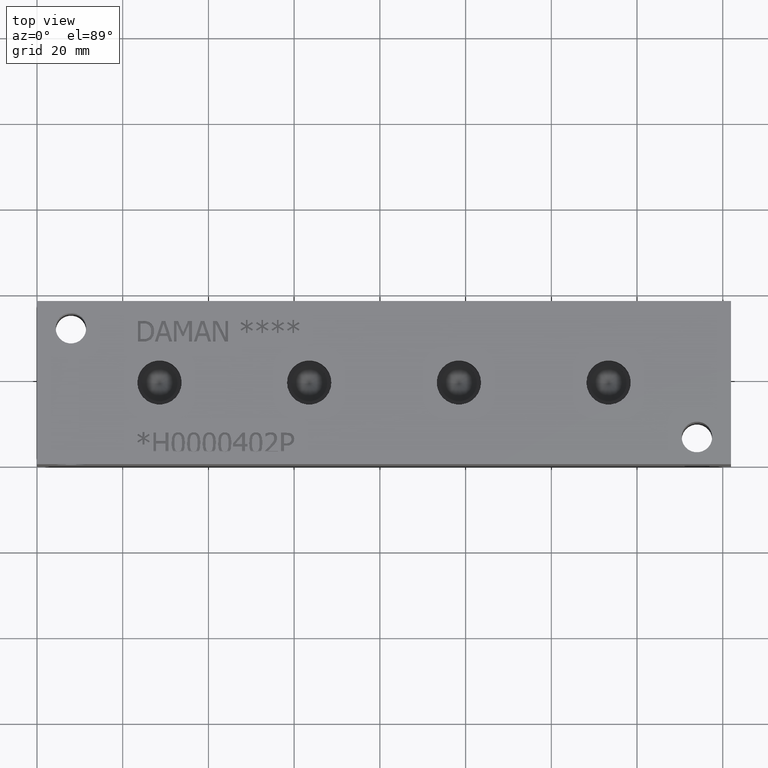
[diagram: clean part render]
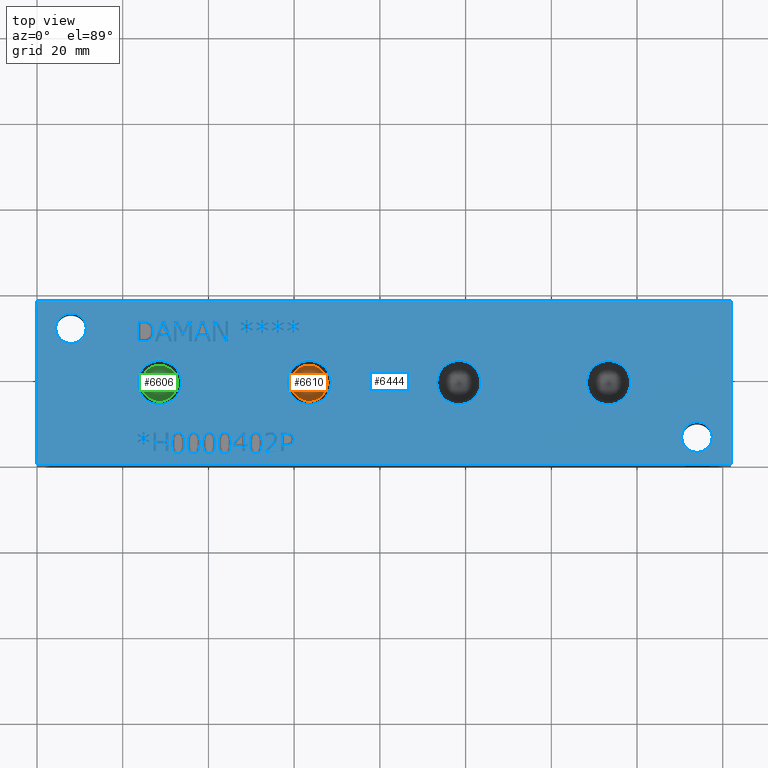
[diagram: same view with three faces highlighted in distinct colors, each labeled with its STEP entity id]
A machine part, top view with three faces highlighted in distinct colors.
Their STEP definitions:

[orange] entity #6610 — the highlighted conical surface has half-angle 60 deg.
#16=CONICAL_SURFACE('',#6910,2.1082,1.0471975511966);
#78=CIRCLE('',#6911,4.2164);
#79=CIRCLE('',#6912,4.2164);
#686=FACE_OUTER_BOUND('',#1058,.T.);
#1058=EDGE_LOOP('',(#5815,#5816,#5817,#5818));
#1740=LINE('',#11132,#2408);
#2408=VECTOR('',#8138,2.1082);
#3178=VERTEX_POINT('',#11128);
#3179=VERTEX_POINT('',#11129);
#3180=VERTEX_POINT('',#11131);
#4070=EDGE_CURVE('',#3178,#3179,#78,.T.);
#4071=EDGE_CURVE('',#3179,#3180,#1740,.T.);
#4072=EDGE_CURVE('',#3179,#3178,#79,.T.);
#5815=ORIENTED_EDGE('',*,*,#4070,.T.);
#5816=ORIENTED_EDGE('',*,*,#4071,.T.);
#5817=ORIENTED_EDGE('',*,*,#4071,.F.);
#5818=ORIENTED_EDGE('',*,*,#4072,.T.);
#6610=ADVANCED_FACE('',(#686),#16,.F.);
#6910=AXIS2_PLACEMENT_3D('',#11127,#8134,#8135);
#6911=AXIS2_PLACEMENT_3D('',#11130,#8136,#8137);
#6912=AXIS2_PLACEMENT_3D('',#11133,#8139,#8140);
#8134=DIRECTION('center_axis',(0.,0.,1.));
#8135=DIRECTION('ref_axis',(1.,0.,0.));
#8136=DIRECTION('center_axis',(0.,0.,1.));
#8137=DIRECTION('ref_axis',(1.,0.,0.));
#8138=DIRECTION('',(0.866025403784439,1.06057523872491E-16,-0.5));
#8139=DIRECTION('center_axis',(0.,0.,1.));
#8140=DIRECTION('ref_axis',(1.,0.,0.));
#11127=CARTESIAN_POINT('Origin',(63.5,19.05,28.7654001624944));
#11128=CARTESIAN_POINT('',(67.7164,19.05,29.98257));
#11129=CARTESIAN_POINT('',(59.2836,19.05,29.98257));
#11130=CARTESIAN_POINT('Origin',(63.5,19.05,29.98257));
#11131=CARTESIAN_POINT('',(63.5,19.05,27.5482303249889));
#11132=CARTESIAN_POINT('',(61.3918,19.05,28.7654001624944));
#11133=CARTESIAN_POINT('Origin',(63.5,19.05,29.98257));

[blue] entity #6444 — the highlighted planar face has unit normal (0, 0, 1).
#48=CIRCLE('',#6715,3.5687);
#49=CIRCLE('',#6716,3.5687);
#50=CIRCLE('',#6717,3.5687);
#51=CIRCLE('',#6718,3.5687);
#52=CIRCLE('',#6719,5.165);
#53=CIRCLE('',#6720,5.165);
#54=CIRCLE('',#6721,5.165);
#55=CIRCLE('',#6722,5.165);
#56=CIRCLE('',#6723,5.165);
#57=CIRCLE('',#6724,5.165);
#58=CIRCLE('',#6725,5.165);
#59=CIRCLE('',#6726,5.165);
#109=FACE_BOUND('',#863,.T.);
#110=FACE_BOUND('',#864,.T.);
#111=FACE_BOUND('',#865,.T.);
#112=FACE_BOUND('',#866,.T.);
#113=FACE_BOUND('',#867,.T.);
#114=FACE_BOUND('',#868,.T.);
#115=FACE_BOUND('',#869,.T.);
#116=FACE_BOUND('',#870,.T.);
#117=FACE_BOUND('',#871,.T.);
#118=FACE_BOUND('',#872,.T.);
#119=FACE_BOUND('',#873,.T.);
#120=FACE_BOUND('',#874,.T.);
#121=FACE_BOUND('',#875,.T.);
#122=FACE_BOUND('',#876,.T.);
#123=FACE_BOUND('',#877,.T.);
#124=FACE_BOUND('',#878,.T.);
#125=FACE_BOUND('',#879,.T.);
#126=FACE_BOUND('',#880,.T.);
#127=FACE_BOUND('',#881,.T.);
#128=FACE_BOUND('',#882,.T.);
#129=FACE_BOUND('',#883,.T.);
#130=FACE_BOUND('',#884,.T.);
#131=FACE_BOUND('',#885,.T.);
#132=FACE_BOUND('',#886,.T.);
#133=FACE_BOUND('',#887,.T.);
#219=PLANE('',#6714);
#520=FACE_OUTER_BOUND('',#862,.T.);
#862=EDGE_LOOP('',(#4799,#4800,#4801,#4802));
#863=EDGE_LOOP('',(#4803,#4804,#4805,#4806,#4807,#4808,#4809,#4810,#4811,
#4812,#4813,#4814,#4815,#4816,#4817,#4818,#4819,#4820));
#864=EDGE_LOOP('',(#4821,#4822,#4823,#4824,#4825,#4826,#4827,#4828,#4829,
#4830,#4831,#4832,#4833,#4834,#4835,#4836,#4837,#4838));
#865=EDGE_LOOP('',(#4839,#4840,#4841,#4842,#4843,#4844,#4845,#4846,#4847,
#4848,#4849,#4850,#4851));
#866=EDGE_LOOP('',(#4852,#4853,#4854,#4855,#4856,#4857,#4858,#4859));
#867=EDGE_LOOP('',(#4860,#4861,#4862,#4863,#4864,#4865,#4866));
#868=EDGE_LOOP('',(#4867,#4868,#4869,#4870,#4871,#4872,#4873,#4874));
#869=EDGE_LOOP('',(#4875,#4876,#4877,#4878,#4879,#4880,#4881,#4882,#4883,
#4884));
#870=EDGE_LOOP('',(#4885,#4886,#4887,#4888,#4889,#4890,#4891,#4892,#4893,
#4894,#4895,#4896,#4897,#4898,#4899,#4900,#4901,#4902));
#871=EDGE_LOOP('',(#4903,#4904,#4905,#4906,#4907,#4908,#4909,#4910,#4911,
#4912,#4913,#4914,#4915,#4916,#4917,#4918,#4919,#4920));
#872=EDGE_LOOP('',(#4921,#4922));
#873=EDGE_LOOP('',(#4923,#4924));
#874=EDGE_LOOP('',(#4925,#4926));
#875=EDGE_LOOP('',(#4927,#4928));
#876=EDGE_LOOP('',(#4929,#4930));
#877=EDGE_LOOP('',(#4931,#4932));
#878=EDGE_LOOP('',(#4933,#4934,#4935,#4936,#4937,#4938,#4939,#4940,#4941,
#4942,#4943,#4944,#4945,#4946,#4947,#4948,#4949));
#879=EDGE_LOOP('',(#4950,#4951,#4952,#4953));
#880=EDGE_LOOP('',(#4954,#4955,#4956,#4957,#4958,#4959,#4960,#4961,#4962,
#4963,#4964));
#881=EDGE_LOOP('',(#4965,#4966,#4967,#4968));
#882=EDGE_LOOP('',(#4969,#4970,#4971,#4972));
#883=EDGE_LOOP('',(#4973,#4974,#4975,#4976));
#884=EDGE_LOOP('',(#4977,#4978,#4979,#4980));
#885=EDGE_LOOP('',(#4981,#4982,#4983,#4984,#4985,#4986,#4987,#4988,#4989,
#4990,#4991,#4992,#4993,#4994,#4995,#4996,#4997,#4998));
#886=EDGE_LOOP('',(#4999,#5000,#5001,#5002,#5003,#5004,#5005,#5006,#5007,
#5008,#5009,#5010));
#887=EDGE_LOOP('',(#5011,#5012,#5013,#5014,#5015,#5016,#5017,#5018,#5019));
#1108=LINE('',#8384,#1776);
#1111=LINE('',#8390,#1779);
#1114=LINE('',#8396,#1782);
#1117=LINE('',#8402,#1785);
#1120=LINE('',#8408,#1788);
#1124=LINE('',#8451,#1792);
#1128=LINE('',#8459,#1796);
#1131=LINE('',#8465,#1799);
#1134=LINE('',#8471,#1802);
#1137=LINE('',#8477,#1805);
#1140=LINE('',#8483,#1808);
#1143=LINE('',#8489,#1811);
#1146=LINE('',#8495,#1814);
#1149=LINE('',#8501,#1817);
#1152=LINE('',#8507,#1820);
#1155=LINE('',#8513,#1823);
#1158=LINE('',#8518,#1826);
#1160=LINE('',#8524,#1828);
#1164=LINE('',#8532,#1832);
#1167=LINE('',#8538,#1835);
#1170=LINE('',#8544,#1838);
#1173=LINE('',#8550,#1841);
#1176=LINE('',#8556,#1844);
#1179=LINE('',#8562,#1847);
#1182=LINE('',#8568,#1850);
#1185=LINE('',#8574,#1853);
#1188=LINE('',#8580,#1856);
#1191=LINE('',#8586,#1859);
#1194=LINE('',#8592,#1862);
#1197=LINE('',#8598,#1865);
#1200=LINE('',#8604,#1868);
#1203=LINE('',#8610,#1871);
#1206=LINE('',#8616,#1874);
#1209=LINE('',#8622,#1877);
#1212=LINE('',#8627,#1880);
#1271=LINE('',#9567,#1939);
#1275=LINE('',#9575,#1943);
#1278=LINE('',#9581,#1946);
#1281=LINE('',#9587,#1949);
#1284=LINE('',#9593,#1952);
#1287=LINE('',#9599,#1955);
#1290=LINE('',#9605,#1958);
#1293=LINE('',#9611,#1961);
#1296=LINE('',#9617,#1964);
#1299=LINE('',#9623,#1967);
#1302=LINE('',#9628,#1970);
#1316=LINE('',#9863,#1984);
#1320=LINE('',#9871,#1988);
#1328=LINE('',#9972,#1996);
#1331=LINE('',#9978,#1999);
#1340=LINE('',#10098,#2008);
#1343=LINE('',#10103,#2011);
#1345=LINE('',#10109,#2013);
#1346=LINE('',#10111,#2014);
#1347=LINE('',#10113,#2015);
#1348=LINE('',#10114,#2016);
#1349=LINE('',#10117,#2017);
#1350=LINE('',#10119,#2018);
#1351=LINE('',#10121,#2019);
#1352=LINE('',#10123,#2020);
#1353=LINE('',#10125,#2021);
#1354=LINE('',#10127,#2022);
#1355=LINE('',#10129,#2023);
#1356=LINE('',#10131,#2024);
#1357=LINE('',#10133,#2025);
#1358=LINE('',#10135,#2026);
#1359=LINE('',#10137,#2027);
#1360=LINE('',#10139,#2028);
#1361=LINE('',#10141,#2029);
#1362=LINE('',#10143,#2030);
#1363=LINE('',#10145,#2031);
#1364=LINE('',#10147,#2032);
#1365=LINE('',#10149,#2033);
#1366=LINE('',#10150,#2034);
#1367=LINE('',#10153,#2035);
#1368=LINE('',#10155,#2036);
#1369=LINE('',#10157,#2037);
#1370=LINE('',#10159,#2038);
#1371=LINE('',#10161,#2039);
#1372=LINE('',#10163,#2040);
#1373=LINE('',#10165,#2041);
#1374=LINE('',#10167,#2042);
#1375=LINE('',#10169,#2043);
#1376=LINE('',#10171,#2044);
#1377=LINE('',#10173,#2045);
#1378=LINE('',#10175,#2046);
#1379=LINE('',#10177,#2047);
#1380=LINE('',#10179,#2048);
#1381=LINE('',#10181,#2049);
#1382=LINE('',#10183,#2050);
#1383=LINE('',#10185,#2051);
#1384=LINE('',#10186,#2052);
#1385=LINE('',#10189,#2053);
#1386=LINE('',#10191,#2054);
#1387=LINE('',#10193,#2055);
#1388=LINE('',#10195,#2056);
#1389=LINE('',#10197,#2057);
#1390=LINE('',#10199,#2058);
#1391=LINE('',#10201,#2059);
#1392=LINE('',#10203,#2060);
#1393=LINE('',#10205,#2061);
#1394=LINE('',#10207,#2062);
#1395=LINE('',#10209,#2063);
#1396=LINE('',#10211,#2064);
#1397=LINE('',#10212,#2065);
#1398=LINE('',#10215,#2066);
#1399=LINE('',#10217,#2067);
#1400=LINE('',#10219,#2068);
#1401=LINE('',#10221,#2069);
#1402=LINE('',#10223,#2070);
#1403=LINE('',#10225,#2071);
#1404=LINE('',#10227,#2072);
#1405=LINE('',#10228,#2073);
#1406=LINE('',#10246,#2074);
#1407=LINE('',#10248,#2075);
#1408=LINE('',#10250,#2076);
#1409=LINE('',#10257,#2077);
#1410=LINE('',#10259,#2078);
#1411=LINE('',#10261,#2079);
#1412=LINE('',#10263,#2080);
#1413=LINE('',#10265,#2081);
#1414=LINE('',#10267,#2082);
#1415=LINE('',#10269,#2083);
#1416=LINE('',#10270,#2084);
#1417=LINE('',#10273,#2085);
#1418=LINE('',#10275,#2086);
#1419=LINE('',#10277,#2087);
#1420=LINE('',#10279,#2088);
#1421=LINE('',#10281,#2089);
#1422=LINE('',#10283,#2090);
#1423=LINE('',#10285,#2091);
#1424=LINE('',#10287,#2092);
#1425=LINE('',#10289,#2093);
#1426=LINE('',#10290,#2094);
#1427=LINE('',#10293,#2095);
#1428=LINE('',#10295,#2096);
#1429=LINE('',#10297,#2097);
#1430=LINE('',#10299,#2098);
#1431=LINE('',#10301,#2099);
#1432=LINE('',#10303,#2100);
#1433=LINE('',#10305,#2101);
#1434=LINE('',#10307,#2102);
#1435=LINE('',#10309,#2103);
#1436=LINE('',#10311,#2104);
#1437=LINE('',#10313,#2105);
#1438=LINE('',#10315,#2106);
#1439=LINE('',#10317,#2107);
#1440=LINE('',#10319,#2108);
#1441=LINE('',#10321,#2109);
#1442=LINE('',#10323,#2110);
#1443=LINE('',#10325,#2111);
#1444=LINE('',#10326,#2112);
#1445=LINE('',#10329,#2113);
#1446=LINE('',#10331,#2114);
#1447=LINE('',#10333,#2115);
#1448=LINE('',#10335,#2116);
#1449=LINE('',#10337,#2117);
#1450=LINE('',#10339,#2118);
#1451=LINE('',#10341,#2119);
#1452=LINE('',#10343,#2120);
#1453=LINE('',#10345,#2121);
#1454=LINE('',#10347,#2122);
#1455=LINE('',#10349,#2123);
#1456=LINE('',#10351,#2124);
#1457=LINE('',#10353,#2125);
#1458=LINE('',#10355,#2126);
#1459=LINE('',#10357,#2127);
#1460=LINE('',#10359,#2128);
#1461=LINE('',#10361,#2129);
#1462=LINE('',#10362,#2130);
#1776=VECTOR('',#6982,10.);
#1779=VECTOR('',#6987,10.);
#1782=VECTOR('',#6992,10.);
#1785=VECTOR('',#6997,10.);
#1788=VECTOR('',#7002,10.);
#1792=VECTOR('',#7010,10.);
#1796=VECTOR('',#7016,10.);
#1799=VECTOR('',#7021,10.);
#1802=VECTOR('',#7026,10.);
#1805=VECTOR('',#7031,10.);
#1808=VECTOR('',#7036,10.);
#1811=VECTOR('',#7041,10.);
#1814=VECTOR('',#7046,10.);
#1817=VECTOR('',#7051,10.);
#1820=VECTOR('',#7056,10.);
#1823=VECTOR('',#7061,10.);
#1826=VECTOR('',#7066,10.);
#1828=VECTOR('',#7072,10.);
#1832=VECTOR('',#7078,10.);
#1835=VECTOR('',#7083,10.);
#1838=VECTOR('',#7088,10.);
#1841=VECTOR('',#7093,10.);
#1844=VECTOR('',#7098,10.);
#1847=VECTOR('',#7103,10.);
#1850=VECTOR('',#7108,10.);
#1853=VECTOR('',#7113,10.);
#1856=VECTOR('',#7118,10.);
#1859=VECTOR('',#7123,10.);
#1862=VECTOR('',#7128,10.);
#1865=VECTOR('',#7133,10.);
#1868=VECTOR('',#7138,10.);
#1871=VECTOR('',#7143,10.);
#1874=VECTOR('',#7148,10.);
#1877=VECTOR('',#7153,10.);
#1880=VECTOR('',#7158,10.);
#1939=VECTOR('',#7235,10.);
#1943=VECTOR('',#7241,10.);
#1946=VECTOR('',#7246,10.);
#1949=VECTOR('',#7251,10.);
#1952=VECTOR('',#7256,10.);
#1955=VECTOR('',#7261,10.);
#1958=VECTOR('',#7266,10.);
#1961=VECTOR('',#7271,10.);
#1964=VECTOR('',#7276,10.);
#1967=VECTOR('',#7281,10.);
#1970=VECTOR('',#7286,10.);
#1984=VECTOR('',#7306,10.);
#1988=VECTOR('',#7312,10.);
#1996=VECTOR('',#7322,10.);
#1999=VECTOR('',#7327,10.);
#2008=VECTOR('',#7338,10.);
#2011=VECTOR('',#7343,10.);
#2013=VECTOR('',#7349,10.);
#2014=VECTOR('',#7350,10.);
#2015=VECTOR('',#7351,10.);
#2016=VECTOR('',#7352,10.);
#2017=VECTOR('',#7353,10.);
#2018=VECTOR('',#7354,10.);
#2019=VECTOR('',#7355,10.);
#2020=VECTOR('',#7356,10.);
#2021=VECTOR('',#7357,10.);
#2022=VECTOR('',#7358,10.);
#2023=VECTOR('',#7359,10.);
#2024=VECTOR('',#7360,10.);
#2025=VECTOR('',#7361,10.);
#2026=VECTOR('',#7362,10.);
#2027=VECTOR('',#7363,10.);
#2028=VECTOR('',#7364,10.);
#2029=VECTOR('',#7365,10.);
#2030=VECTOR('',#7366,10.);
#2031=VECTOR('',#7367,10.);
#2032=VECTOR('',#7368,10.);
#2033=VECTOR('',#7369,10.);
#2034=VECTOR('',#7370,10.);
#2035=VECTOR('',#7371,10.);
#2036=VECTOR('',#7372,10.);
#2037=VECTOR('',#7373,10.);
#2038=VECTOR('',#7374,10.);
#2039=VECTOR('',#7375,10.);
#2040=VECTOR('',#7376,10.);
#2041=VECTOR('',#7377,10.);
#2042=VECTOR('',#7378,10.);
#2043=VECTOR('',#7379,10.);
#2044=VECTOR('',#7380,10.);
#2045=VECTOR('',#7381,10.);
#2046=VECTOR('',#7382,10.);
#2047=VECTOR('',#7383,10.);
#2048=VECTOR('',#7384,10.);
#2049=VECTOR('',#7385,10.);
#2050=VECTOR('',#7386,10.);
#2051=VECTOR('',#7387,10.);
#2052=VECTOR('',#7388,10.);
#2053=VECTOR('',#7389,10.);
#2054=VECTOR('',#7390,10.);
#2055=VECTOR('',#7391,10.);
#2056=VECTOR('',#7392,10.);
#2057=VECTOR('',#7393,10.);
#2058=VECTOR('',#7394,10.);
#2059=VECTOR('',#7395,10.);
#2060=VECTOR('',#7396,10.);
#2061=VECTOR('',#7397,10.);
#2062=VECTOR('',#7398,10.);
#2063=VECTOR('',#7399,10.);
#2064=VECTOR('',#7400,10.);
#2065=VECTOR('',#7401,10.);
#2066=VECTOR('',#7402,10.);
#2067=VECTOR('',#7403,10.);
#2068=VECTOR('',#7404,10.);
#2069=VECTOR('',#7405,10.);
#2070=VECTOR('',#7406,10.);
#2071=VECTOR('',#7407,10.);
#2072=VECTOR('',#7408,10.);
#2073=VECTOR('',#7409,10.);
#2074=VECTOR('',#7410,10.);
#2075=VECTOR('',#7411,10.);
#2076=VECTOR('',#7412,10.);
#2077=VECTOR('',#7413,10.);
#2078=VECTOR('',#7414,10.);
#2079=VECTOR('',#7415,10.);
#2080=VECTOR('',#7416,10.);
#2081=VECTOR('',#7417,10.);
#2082=VECTOR('',#7418,10.);
#2083=VECTOR('',#7419,10.);
#2084=VECTOR('',#7420,10.);
#2085=VECTOR('',#7421,10.);
#2086=VECTOR('',#7422,10.);
#2087=VECTOR('',#7423,10.);
#2088=VECTOR('',#7424,10.);
#2089=VECTOR('',#7425,10.);
#2090=VECTOR('',#7426,10.);
#2091=VECTOR('',#7427,10.);
#2092=VECTOR('',#7428,10.);
#2093=VECTOR('',#7429,10.);
#2094=VECTOR('',#7430,10.);
#2095=VECTOR('',#7431,10.);
#2096=VECTOR('',#7432,10.);
#2097=VECTOR('',#7433,10.);
#2098=VECTOR('',#7434,10.);
#2099=VECTOR('',#7435,10.);
#2100=VECTOR('',#7436,10.);
#2101=VECTOR('',#7437,10.);
#2102=VECTOR('',#7438,10.);
#2103=VECTOR('',#7439,10.);
#2104=VECTOR('',#7440,10.);
#2105=VECTOR('',#7441,10.);
#2106=VECTOR('',#7442,10.);
#2107=VECTOR('',#7443,10.);
#2108=VECTOR('',#7444,10.);
#2109=VECTOR('',#7445,10.);
#2110=VECTOR('',#7446,10.);
#2111=VECTOR('',#7447,10.);
#2112=VECTOR('',#7448,10.);
#2113=VECTOR('',#7449,10.);
#2114=VECTOR('',#7450,10.);
#2115=VECTOR('',#7451,10.);
#2116=VECTOR('',#7452,10.);
#2117=VECTOR('',#7453,10.);
#2118=VECTOR('',#7454,10.);
#2119=VECTOR('',#7455,10.);
#2120=VECTOR('',#7456,10.);
#2121=VECTOR('',#7457,10.);
#2122=VECTOR('',#7458,10.);
#2123=VECTOR('',#7459,10.);
#2124=VECTOR('',#7460,10.);
#2125=VECTOR('',#7461,10.);
#2126=VECTOR('',#7462,10.);
#2127=VECTOR('',#7463,10.);
#2128=VECTOR('',#7464,10.);
#2129=VECTOR('',#7465,10.);
#2130=VECTOR('',#7466,10.);
#2436=B_SPLINE_CURVE_WITH_KNOTS('',2,(#8351,#8352,#8353,#8354),
 .UNSPECIFIED.,.F.,.F.,(3,1,3),(0.,1.,2.),.UNSPECIFIED.);
#2438=B_SPLINE_CURVE_WITH_KNOTS('',2,(#8372,#8373,#8374,#8375),
 .UNSPECIFIED.,.F.,.F.,(3,1,3),(0.,1.,2.),.UNSPECIFIED.);
#2440=B_SPLINE_CURVE_WITH_KNOTS('',2,(#8421,#8422,#8423,#8424),
 .UNSPECIFIED.,.F.,.F.,(3,1,3),(0.,1.,2.),.UNSPECIFIED.);
#2442=B_SPLINE_CURVE_WITH_KNOTS('',2,(#8439,#8440,#8441,#8442),
 .UNSPECIFIED.,.F.,.F.,(3,1,3),(0.,1.,2.),.UNSPECIFIED.);
#2460=B_SPLINE_CURVE_WITH_KNOTS('',2,(#8792,#8793,#8794,#8795),
 .UNSPECIFIED.,.F.,.F.,(3,1,3),(0.,1.,2.),.UNSPECIFIED.);
#2462=B_SPLINE_CURVE_WITH_KNOTS('',2,(#8813,#8814,#8815,#8816),
 .UNSPECIFIED.,.F.,.F.,(3,1,3),(0.,1.,2.),.UNSPECIFIED.);
#2464=B_SPLINE_CURVE_WITH_KNOTS('',2,(#8832,#8833,#8834,#8835),
 .UNSPECIFIED.,.F.,.F.,(3,1,3),(0.,1.,2.),.UNSPECIFIED.);
#2466=B_SPLINE_CURVE_WITH_KNOTS('',2,(#8850,#8851,#8852,#8853),
 .UNSPECIFIED.,.F.,.F.,(3,1,3),(0.,1.,2.),.UNSPECIFIED.);
#2484=B_SPLINE_CURVE_WITH_KNOTS('',2,(#9021,#9022,#9023,#9024),
 .UNSPECIFIED.,.F.,.F.,(3,1,3),(0.,1.,2.),.UNSPECIFIED.);
#2486=B_SPLINE_CURVE_WITH_KNOTS('',2,(#9042,#9043,#9044,#9045),
 .UNSPECIFIED.,.F.,.F.,(3,1,3),(0.,1.,2.),.UNSPECIFIED.);
#2488=B_SPLINE_CURVE_WITH_KNOTS('',2,(#9061,#9062,#9063,#9064),
 .UNSPECIFIED.,.F.,.F.,(3,1,3),(0.,1.,2.),.UNSPECIFIED.);
#2490=B_SPLINE_CURVE_WITH_KNOTS('',2,(#9079,#9080,#9081,#9082),
 .UNSPECIFIED.,.F.,.F.,(3,1,3),(0.,1.,2.),.UNSPECIFIED.);
#2508=B_SPLINE_CURVE_WITH_KNOTS('',2,(#9250,#9251,#9252,#9253),
 .UNSPECIFIED.,.F.,.F.,(3,1,3),(0.,1.,2.),.UNSPECIFIED.);
#2510=B_SPLINE_CURVE_WITH_KNOTS('',2,(#9271,#9272,#9273,#9274),
 .UNSPECIFIED.,.F.,.F.,(3,1,3),(0.,1.,2.),.UNSPECIFIED.);
#2512=B_SPLINE_CURVE_WITH_KNOTS('',2,(#9290,#9291,#9292,#9293),
 .UNSPECIFIED.,.F.,.F.,(3,1,3),(0.,1.,2.),.UNSPECIFIED.);
#2514=B_SPLINE_CURVE_WITH_KNOTS('',2,(#9308,#9309,#9310,#9311),
 .UNSPECIFIED.,.F.,.F.,(3,1,3),(0.,1.,2.),.UNSPECIFIED.);
#2532=B_SPLINE_CURVE_WITH_KNOTS('',2,(#9479,#9480,#9481,#9482),
 .UNSPECIFIED.,.F.,.F.,(3,1,3),(0.,1.,2.),.UNSPECIFIED.);
#2534=B_SPLINE_CURVE_WITH_KNOTS('',2,(#9500,#9501,#9502,#9503),
 .UNSPECIFIED.,.F.,.F.,(3,1,3),(0.,1.,2.),.UNSPECIFIED.);
#2536=B_SPLINE_CURVE_WITH_KNOTS('',2,(#9519,#9520,#9521,#9522),
 .UNSPECIFIED.,.F.,.F.,(3,1,3),(0.,1.,2.),.UNSPECIFIED.);
#2538=B_SPLINE_CURVE_WITH_KNOTS('',2,(#9537,#9538,#9539,#9540),
 .UNSPECIFIED.,.F.,.F.,(3,1,3),(0.,1.,2.),.UNSPECIFIED.);
#2556=B_SPLINE_CURVE_WITH_KNOTS('',2,(#9793,#9794,#9795,#9796),
 .UNSPECIFIED.,.F.,.F.,(3,1,3),(0.,1.,2.),.UNSPECIFIED.);
#2558=B_SPLINE_CURVE_WITH_KNOTS('',2,(#9814,#9815,#9816,#9817),
 .UNSPECIFIED.,.F.,.F.,(3,1,3),(0.,1.,2.),.UNSPECIFIED.);
#2560=B_SPLINE_CURVE_WITH_KNOTS('',2,(#9833,#9834,#9835,#9836),
 .UNSPECIFIED.,.F.,.F.,(3,1,3),(0.,1.,2.),.UNSPECIFIED.);
#2562=B_SPLINE_CURVE_WITH_KNOTS('',2,(#9851,#9852,#9853,#9854),
 .UNSPECIFIED.,.F.,.F.,(3,1,3),(0.,1.,2.),.UNSPECIFIED.);
#2564=B_SPLINE_CURVE_WITH_KNOTS('',2,(#9884,#9885,#9886,#9887),
 .UNSPECIFIED.,.F.,.F.,(3,1,3),(0.,1.,2.),.UNSPECIFIED.);
#2566=B_SPLINE_CURVE_WITH_KNOTS('',2,(#9903,#9904,#9905,#9906),
 .UNSPECIFIED.,.F.,.F.,(3,1,3),(0.,1.,2.),.UNSPECIFIED.);
#2568=B_SPLINE_CURVE_WITH_KNOTS('',2,(#9922,#9923,#9924,#9925),
 .UNSPECIFIED.,.F.,.F.,(3,1,3),(0.,1.,2.),.UNSPECIFIED.);
#2570=B_SPLINE_CURVE_WITH_KNOTS('',2,(#9941,#9942,#9943,#9944),
 .UNSPECIFIED.,.F.,.F.,(3,1,3),(0.,1.,2.),.UNSPECIFIED.);
#2572=B_SPLINE_CURVE_WITH_KNOTS('',2,(#9960,#9961,#9962,#9963),
 .UNSPECIFIED.,.F.,.F.,(3,1,3),(0.,1.,2.),.UNSPECIFIED.);
#2574=B_SPLINE_CURVE_WITH_KNOTS('',2,(#9991,#9992,#9993,#9994),
 .UNSPECIFIED.,.F.,.F.,(3,1,3),(0.,1.,2.),.UNSPECIFIED.);
#2576=B_SPLINE_CURVE_WITH_KNOTS('',2,(#10010,#10011,#10012,#10013),
 .UNSPECIFIED.,.F.,.F.,(3,1,3),(0.,1.,2.),.UNSPECIFIED.);
#2578=B_SPLINE_CURVE_WITH_KNOTS('',2,(#10029,#10030,#10031,#10032),
 .UNSPECIFIED.,.F.,.F.,(3,1,3),(0.,1.,2.),.UNSPECIFIED.);
#2580=B_SPLINE_CURVE_WITH_KNOTS('',2,(#10048,#10049,#10050,#10051),
 .UNSPECIFIED.,.F.,.F.,(3,1,3),(0.,1.,2.),.UNSPECIFIED.);
#2582=B_SPLINE_CURVE_WITH_KNOTS('',2,(#10067,#10068,#10069,#10070),
 .UNSPECIFIED.,.F.,.F.,(3,1,3),(0.,1.,2.),.UNSPECIFIED.);
#2584=B_SPLINE_CURVE_WITH_KNOTS('',2,(#10086,#10087,#10088,#10089),
 .UNSPECIFIED.,.F.,.F.,(3,1,3),(0.,1.,2.),.UNSPECIFIED.);
#2586=B_SPLINE_CURVE_WITH_KNOTS('',2,(#10231,#10232,#10233,#10234),
 .UNSPECIFIED.,.F.,.F.,(3,1,3),(0.,1.,2.),.UNSPECIFIED.);
#2587=B_SPLINE_CURVE_WITH_KNOTS('',2,(#10236,#10237,#10238,#10239),
 .UNSPECIFIED.,.F.,.F.,(3,1,3),(0.,1.,2.),.UNSPECIFIED.);
#2588=B_SPLINE_CURVE_WITH_KNOTS('',2,(#10241,#10242,#10243,#10244),
 .UNSPECIFIED.,.F.,.F.,(3,1,3),(0.,1.,2.),.UNSPECIFIED.);
#2589=B_SPLINE_CURVE_WITH_KNOTS('',2,(#10251,#10252,#10253,#10254),
 .UNSPECIFIED.,.F.,.F.,(3,1,3),(0.,1.,2.),.UNSPECIFIED.);
#2616=VERTEX_POINT('',#8349);
#2617=VERTEX_POINT('',#8350);
#2620=VERTEX_POINT('',#8371);
#2622=VERTEX_POINT('',#8383);
#2624=VERTEX_POINT('',#8389);
#2626=VERTEX_POINT('',#8395);
#2628=VERTEX_POINT('',#8401);
#2630=VERTEX_POINT('',#8407);
#2632=VERTEX_POINT('',#8420);
#2634=VERTEX_POINT('',#8449);
#2635=VERTEX_POINT('',#8450);
#2638=VERTEX_POINT('',#8458);
#2640=VERTEX_POINT('',#8464);
#2642=VERTEX_POINT('',#8470);
#2644=VERTEX_POINT('',#8476);
#2646=VERTEX_POINT('',#8482);
#2648=VERTEX_POINT('',#8488);
#2650=VERTEX_POINT('',#8494);
#2652=VERTEX_POINT('',#8500);
#2654=VERTEX_POINT('',#8506);
#2656=VERTEX_POINT('',#8512);
#2658=VERTEX_POINT('',#8522);
#2659=VERTEX_POINT('',#8523);
#2662=VERTEX_POINT('',#8531);
#2664=VERTEX_POINT('',#8537);
#2666=VERTEX_POINT('',#8543);
#2668=VERTEX_POINT('',#8549);
#2670=VERTEX_POINT('',#8555);
#2672=VERTEX_POINT('',#8561);
#2674=VERTEX_POINT('',#8567);
#2676=VERTEX_POINT('',#8573);
#2678=VERTEX_POINT('',#8579);
#2680=VERTEX_POINT('',#8585);
#2682=VERTEX_POINT('',#8591);
#2684=VERTEX_POINT('',#8597);
#2686=VERTEX_POINT('',#8603);
#2688=VERTEX_POINT('',#8609);
#2690=VERTEX_POINT('',#8615);
#2692=VERTEX_POINT('',#8621);
#2710=VERTEX_POINT('',#8790);
#2711=VERTEX_POINT('',#8791);
#2714=VERTEX_POINT('',#8812);
#2716=VERTEX_POINT('',#8831);
#2734=VERTEX_POINT('',#9019);
#2735=VERTEX_POINT('',#9020);
#2738=VERTEX_POINT('',#9041);
#2740=VERTEX_POINT('',#9060);
#2758=VERTEX_POINT('',#9248);
#2759=VERTEX_POINT('',#9249);
#2762=VERTEX_POINT('',#9270);
#2764=VERTEX_POINT('',#9289);
#2782=VERTEX_POINT('',#9477);
#2783=VERTEX_POINT('',#9478);
#2786=VERTEX_POINT('',#9499);
#2788=VERTEX_POINT('',#9518);
#2796=VERTEX_POINT('',#9565);
#2797=VERTEX_POINT('',#9566);
#2800=VERTEX_POINT('',#9574);
#2802=VERTEX_POINT('',#9580);
#2804=VERTEX_POINT('',#9586);
#2806=VERTEX_POINT('',#9592);
#2808=VERTEX_POINT('',#9598);
#2810=VERTEX_POINT('',#9604);
#2812=VERTEX_POINT('',#9610);
#2814=VERTEX_POINT('',#9616);
#2816=VERTEX_POINT('',#9622);
#2834=VERTEX_POINT('',#9791);
#2835=VERTEX_POINT('',#9792);
#2838=VERTEX_POINT('',#9813);
#2840=VERTEX_POINT('',#9832);
#2842=VERTEX_POINT('',#9861);
#2843=VERTEX_POINT('',#9862);
#2846=VERTEX_POINT('',#9870);
#2848=VERTEX_POINT('',#9883);
#2850=VERTEX_POINT('',#9902);
#2852=VERTEX_POINT('',#9921);
#2854=VERTEX_POINT('',#9940);
#2856=VERTEX_POINT('',#9959);
#2858=VERTEX_POINT('',#9971);
#2860=VERTEX_POINT('',#9977);
#2862=VERTEX_POINT('',#9990);
#2864=VERTEX_POINT('',#10009);
#2866=VERTEX_POINT('',#10028);
#2868=VERTEX_POINT('',#10047);
#2870=VERTEX_POINT('',#10066);
#2872=VERTEX_POINT('',#10085);
#2874=VERTEX_POINT('',#10097);
#2876=VERTEX_POINT('',#10107);
#2877=VERTEX_POINT('',#10108);
#2878=VERTEX_POINT('',#10110);
#2879=VERTEX_POINT('',#10112);
#2880=VERTEX_POINT('',#10115);
#2881=VERTEX_POINT('',#10116);
#2882=VERTEX_POINT('',#10118);
#2883=VERTEX_POINT('',#10120);
#2884=VERTEX_POINT('',#10122);
#2885=VERTEX_POINT('',#10124);
#2886=VERTEX_POINT('',#10126);
#2887=VERTEX_POINT('',#10128);
#2888=VERTEX_POINT('',#10130);
#2889=VERTEX_POINT('',#10132);
#2890=VERTEX_POINT('',#10134);
#2891=VERTEX_POINT('',#10136);
#2892=VERTEX_POINT('',#10138);
#2893=VERTEX_POINT('',#10140);
#2894=VERTEX_POINT('',#10142);
#2895=VERTEX_POINT('',#10144);
#2896=VERTEX_POINT('',#10146);
#2897=VERTEX_POINT('',#10148);
#2898=VERTEX_POINT('',#10151);
#2899=VERTEX_POINT('',#10152);
#2900=VERTEX_POINT('',#10154);
#2901=VERTEX_POINT('',#10156);
#2902=VERTEX_POINT('',#10158);
#2903=VERTEX_POINT('',#10160);
#2904=VERTEX_POINT('',#10162);
#2905=VERTEX_POINT('',#10164);
#2906=VERTEX_POINT('',#10166);
#2907=VERTEX_POINT('',#10168);
#2908=VERTEX_POINT('',#10170);
#2909=VERTEX_POINT('',#10172);
#2910=VERTEX_POINT('',#10174);
#2911=VERTEX_POINT('',#10176);
#2912=VERTEX_POINT('',#10178);
#2913=VERTEX_POINT('',#10180);
#2914=VERTEX_POINT('',#10182);
#2915=VERTEX_POINT('',#10184);
#2916=VERTEX_POINT('',#10187);
#2917=VERTEX_POINT('',#10188);
#2918=VERTEX_POINT('',#10190);
#2919=VERTEX_POINT('',#10192);
#2920=VERTEX_POINT('',#10194);
#2921=VERTEX_POINT('',#10196);
#2922=VERTEX_POINT('',#10198);
#2923=VERTEX_POINT('',#10200);
#2924=VERTEX_POINT('',#10202);
#2925=VERTEX_POINT('',#10204);
#2926=VERTEX_POINT('',#10206);
#2927=VERTEX_POINT('',#10208);
#2928=VERTEX_POINT('',#10210);
#2929=VERTEX_POINT('',#10213);
#2930=VERTEX_POINT('',#10214);
#2931=VERTEX_POINT('',#10216);
#2932=VERTEX_POINT('',#10218);
#2933=VERTEX_POINT('',#10220);
#2934=VERTEX_POINT('',#10222);
#2935=VERTEX_POINT('',#10224);
#2936=VERTEX_POINT('',#10226);
#2937=VERTEX_POINT('',#10229);
#2938=VERTEX_POINT('',#10230);
#2939=VERTEX_POINT('',#10235);
#2940=VERTEX_POINT('',#10240);
#2941=VERTEX_POINT('',#10245);
#2942=VERTEX_POINT('',#10247);
#2943=VERTEX_POINT('',#10249);
#2944=VERTEX_POINT('',#10255);
#2945=VERTEX_POINT('',#10256);
#2946=VERTEX_POINT('',#10258);
#2947=VERTEX_POINT('',#10260);
#2948=VERTEX_POINT('',#10262);
#2949=VERTEX_POINT('',#10264);
#2950=VERTEX_POINT('',#10266);
#2951=VERTEX_POINT('',#10268);
#2952=VERTEX_POINT('',#10271);
#2953=VERTEX_POINT('',#10272);
#2954=VERTEX_POINT('',#10274);
#2955=VERTEX_POINT('',#10276);
#2956=VERTEX_POINT('',#10278);
#2957=VERTEX_POINT('',#10280);
#2958=VERTEX_POINT('',#10282);
#2959=VERTEX_POINT('',#10284);
#2960=VERTEX_POINT('',#10286);
#2961=VERTEX_POINT('',#10288);
#2962=VERTEX_POINT('',#10291);
#2963=VERTEX_POINT('',#10292);
#2964=VERTEX_POINT('',#10294);
#2965=VERTEX_POINT('',#10296);
#2966=VERTEX_POINT('',#10298);
#2967=VERTEX_POINT('',#10300);
#2968=VERTEX_POINT('',#10302);
#2969=VERTEX_POINT('',#10304);
#2970=VERTEX_POINT('',#10306);
#2971=VERTEX_POINT('',#10308);
#2972=VERTEX_POINT('',#10310);
#2973=VERTEX_POINT('',#10312);
#2974=VERTEX_POINT('',#10314);
#2975=VERTEX_POINT('',#10316);
#2976=VERTEX_POINT('',#10318);
#2977=VERTEX_POINT('',#10320);
#2978=VERTEX_POINT('',#10322);
#2979=VERTEX_POINT('',#10324);
#2980=VERTEX_POINT('',#10327);
#2981=VERTEX_POINT('',#10328);
#2982=VERTEX_POINT('',#10330);
#2983=VERTEX_POINT('',#10332);
#2984=VERTEX_POINT('',#10334);
#2985=VERTEX_POINT('',#10336);
#2986=VERTEX_POINT('',#10338);
#2987=VERTEX_POINT('',#10340);
#2988=VERTEX_POINT('',#10342);
#2989=VERTEX_POINT('',#10344);
#2990=VERTEX_POINT('',#10346);
#2991=VERTEX_POINT('',#10348);
#2992=VERTEX_POINT('',#10350);
#2993=VERTEX_POINT('',#10352);
#2994=VERTEX_POINT('',#10354);
#2995=VERTEX_POINT('',#10356);
#2996=VERTEX_POINT('',#10358);
#2997=VERTEX_POINT('',#10360);
#2998=VERTEX_POINT('',#10363);
#2999=VERTEX_POINT('',#10364);
#3000=VERTEX_POINT('',#10367);
#3001=VERTEX_POINT('',#10368);
#3002=VERTEX_POINT('',#10371);
#3003=VERTEX_POINT('',#10372);
#3004=VERTEX_POINT('',#10375);
#3005=VERTEX_POINT('',#10376);
#3006=VERTEX_POINT('',#10379);
#3007=VERTEX_POINT('',#10380);
#3008=VERTEX_POINT('',#10383);
#3009=VERTEX_POINT('',#10384);
#3231=EDGE_CURVE('',#2616,#2617,#2436,.T.);
#3235=EDGE_CURVE('',#2620,#2616,#2438,.T.);
#3238=EDGE_CURVE('',#2622,#2620,#1108,.T.);
#3241=EDGE_CURVE('',#2624,#2622,#1111,.T.);
#3244=EDGE_CURVE('',#2626,#2624,#1114,.T.);
#3247=EDGE_CURVE('',#2628,#2626,#1117,.T.);
#3250=EDGE_CURVE('',#2630,#2628,#1120,.T.);
#3253=EDGE_CURVE('',#2632,#2630,#2440,.T.);
#3256=EDGE_CURVE('',#2617,#2632,#2442,.T.);
#3258=EDGE_CURVE('',#2634,#2635,#1124,.T.);
#3262=EDGE_CURVE('',#2638,#2634,#1128,.T.);
#3265=EDGE_CURVE('',#2640,#2638,#1131,.T.);
#3268=EDGE_CURVE('',#2642,#2640,#1134,.T.);
#3271=EDGE_CURVE('',#2644,#2642,#1137,.T.);
#3274=EDGE_CURVE('',#2646,#2644,#1140,.T.);
#3277=EDGE_CURVE('',#2648,#2646,#1143,.T.);
#3280=EDGE_CURVE('',#2650,#2648,#1146,.T.);
#3283=EDGE_CURVE('',#2652,#2650,#1149,.T.);
#3286=EDGE_CURVE('',#2654,#2652,#1152,.T.);
#3289=EDGE_CURVE('',#2656,#2654,#1155,.T.);
#3292=EDGE_CURVE('',#2635,#2656,#1158,.T.);
#3294=EDGE_CURVE('',#2658,#2659,#1160,.T.);
#3298=EDGE_CURVE('',#2662,#2658,#1164,.T.);
#3301=EDGE_CURVE('',#2664,#2662,#1167,.T.);
#3304=EDGE_CURVE('',#2666,#2664,#1170,.T.);
#3307=EDGE_CURVE('',#2668,#2666,#1173,.T.);
#3310=EDGE_CURVE('',#2670,#2668,#1176,.T.);
#3313=EDGE_CURVE('',#2672,#2670,#1179,.T.);
#3316=EDGE_CURVE('',#2674,#2672,#1182,.T.);
#3319=EDGE_CURVE('',#2676,#2674,#1185,.T.);
#3322=EDGE_CURVE('',#2678,#2676,#1188,.T.);
#3325=EDGE_CURVE('',#2680,#2678,#1191,.T.);
#3328=EDGE_CURVE('',#2682,#2680,#1194,.T.);
#3331=EDGE_CURVE('',#2684,#2682,#1197,.T.);
#3334=EDGE_CURVE('',#2686,#2684,#1200,.T.);
#3337=EDGE_CURVE('',#2688,#2686,#1203,.T.);
#3340=EDGE_CURVE('',#2690,#2688,#1206,.T.);
#3343=EDGE_CURVE('',#2692,#2690,#1209,.T.);
#3346=EDGE_CURVE('',#2659,#2692,#1212,.T.);
#3372=EDGE_CURVE('',#2710,#2711,#2460,.T.);
#3376=EDGE_CURVE('',#2714,#2710,#2462,.T.);
#3379=EDGE_CURVE('',#2716,#2714,#2464,.T.);
#3382=EDGE_CURVE('',#2711,#2716,#2466,.T.);
#3408=EDGE_CURVE('',#2734,#2735,#2484,.T.);
#3412=EDGE_CURVE('',#2738,#2734,#2486,.T.);
#3415=EDGE_CURVE('',#2740,#2738,#2488,.T.);
#3418=EDGE_CURVE('',#2735,#2740,#2490,.T.);
#3444=EDGE_CURVE('',#2758,#2759,#2508,.T.);
#3448=EDGE_CURVE('',#2762,#2758,#2510,.T.);
#3451=EDGE_CURVE('',#2764,#2762,#2512,.T.);
#3454=EDGE_CURVE('',#2759,#2764,#2514,.T.);
#3480=EDGE_CURVE('',#2782,#2783,#2532,.T.);
#3484=EDGE_CURVE('',#2786,#2782,#2534,.T.);
#3487=EDGE_CURVE('',#2788,#2786,#2536,.T.);
#3490=EDGE_CURVE('',#2783,#2788,#2538,.T.);
#3501=EDGE_CURVE('',#2796,#2797,#1271,.T.);
#3505=EDGE_CURVE('',#2800,#2796,#1275,.T.);
#3508=EDGE_CURVE('',#2802,#2800,#1278,.T.);
#3511=EDGE_CURVE('',#2804,#2802,#1281,.T.);
#3514=EDGE_CURVE('',#2806,#2804,#1284,.T.);
#3517=EDGE_CURVE('',#2808,#2806,#1287,.T.);
#3520=EDGE_CURVE('',#2810,#2808,#1290,.T.);
#3523=EDGE_CURVE('',#2812,#2810,#1293,.T.);
#3526=EDGE_CURVE('',#2814,#2812,#1296,.T.);
#3529=EDGE_CURVE('',#2816,#2814,#1299,.T.);
#3532=EDGE_CURVE('',#2797,#2816,#1302,.T.);
#3558=EDGE_CURVE('',#2834,#2835,#2556,.T.);
#3562=EDGE_CURVE('',#2838,#2834,#2558,.T.);
#3565=EDGE_CURVE('',#2840,#2838,#2560,.T.);
#3568=EDGE_CURVE('',#2835,#2840,#2562,.T.);
#3570=EDGE_CURVE('',#2842,#2843,#1316,.T.);
#3574=EDGE_CURVE('',#2846,#2842,#1320,.T.);
#3577=EDGE_CURVE('',#2848,#2846,#2564,.T.);
#3580=EDGE_CURVE('',#2850,#2848,#2566,.T.);
#3583=EDGE_CURVE('',#2852,#2850,#2568,.T.);
#3586=EDGE_CURVE('',#2854,#2852,#2570,.T.);
#3589=EDGE_CURVE('',#2856,#2854,#2572,.T.);
#3592=EDGE_CURVE('',#2858,#2856,#1328,.T.);
#3595=EDGE_CURVE('',#2860,#2858,#1331,.T.);
#3598=EDGE_CURVE('',#2862,#2860,#2574,.T.);
#3601=EDGE_CURVE('',#2864,#2862,#2576,.T.);
#3604=EDGE_CURVE('',#2866,#2864,#2578,.T.);
#3607=EDGE_CURVE('',#2868,#2866,#2580,.T.);
#3610=EDGE_CURVE('',#2870,#2868,#2582,.T.);
#3613=EDGE_CURVE('',#2872,#2870,#2584,.T.);
#3616=EDGE_CURVE('',#2874,#2872,#1340,.T.);
#3619=EDGE_CURVE('',#2843,#2874,#1343,.T.);
#3621=EDGE_CURVE('',#2876,#2877,#1345,.T.);
#3622=EDGE_CURVE('',#2877,#2878,#1346,.T.);
#3623=EDGE_CURVE('',#2878,#2879,#1347,.T.);
#3624=EDGE_CURVE('',#2879,#2876,#1348,.T.);
#3625=EDGE_CURVE('',#2880,#2881,#1349,.T.);
#3626=EDGE_CURVE('',#2881,#2882,#1350,.T.);
#3627=EDGE_CURVE('',#2882,#2883,#1351,.T.);
#3628=EDGE_CURVE('',#2883,#2884,#1352,.T.);
#3629=EDGE_CURVE('',#2884,#2885,#1353,.T.);
#3630=EDGE_CURVE('',#2885,#2886,#1354,.T.);
#3631=EDGE_CURVE('',#2886,#2887,#1355,.T.);
#3632=EDGE_CURVE('',#2887,#2888,#1356,.T.);
#3633=EDGE_CURVE('',#2888,#2889,#1357,.T.);
#3634=EDGE_CURVE('',#2889,#2890,#1358,.T.);
#3635=EDGE_CURVE('',#2890,#2891,#1359,.T.);
#3636=EDGE_CURVE('',#2891,#2892,#1360,.T.);
#3637=EDGE_CURVE('',#2892,#2893,#1361,.T.);
#3638=EDGE_CURVE('',#2893,#2894,#1362,.T.);
#3639=EDGE_CURVE('',#2894,#2895,#1363,.T.);
#3640=EDGE_CURVE('',#2895,#2896,#1364,.T.);
#3641=EDGE_CURVE('',#2896,#2897,#1365,.T.);
#3642=EDGE_CURVE('',#2897,#2880,#1366,.T.);
#3643=EDGE_CURVE('',#2898,#2899,#1367,.T.);
#3644=EDGE_CURVE('',#2899,#2900,#1368,.T.);
#3645=EDGE_CURVE('',#2900,#2901,#1369,.T.);
#3646=EDGE_CURVE('',#2901,#2902,#1370,.T.);
#3647=EDGE_CURVE('',#2902,#2903,#1371,.T.);
#3648=EDGE_CURVE('',#2903,#2904,#1372,.T.);
#3649=EDGE_CURVE('',#2904,#2905,#1373,.T.);
#3650=EDGE_CURVE('',#2905,#2906,#1374,.T.);
#3651=EDGE_CURVE('',#2906,#2907,#1375,.T.);
#3652=EDGE_CURVE('',#2907,#2908,#1376,.T.);
#3653=EDGE_CURVE('',#2908,#2909,#1377,.T.);
#3654=EDGE_CURVE('',#2909,#2910,#1378,.T.);
#3655=EDGE_CURVE('',#2910,#2911,#1379,.T.);
#3656=EDGE_CURVE('',#2911,#2912,#1380,.T.);
#3657=EDGE_CURVE('',#2912,#2913,#1381,.T.);
#3658=EDGE_CURVE('',#2913,#2914,#1382,.T.);
#3659=EDGE_CURVE('',#2914,#2915,#1383,.T.);
#3660=EDGE_CURVE('',#2915,#2898,#1384,.T.);
#3661=EDGE_CURVE('',#2916,#2917,#1385,.T.);
#3662=EDGE_CURVE('',#2917,#2918,#1386,.T.);
#3663=EDGE_CURVE('',#2918,#2919,#1387,.T.);
#3664=EDGE_CURVE('',#2919,#2920,#1388,.T.);
#3665=EDGE_CURVE('',#2920,#2921,#1389,.T.);
#3666=EDGE_CURVE('',#2921,#2922,#1390,.T.);
#3667=EDGE_CURVE('',#2922,#2923,#1391,.T.);
#3668=EDGE_CURVE('',#2923,#2924,#1392,.T.);
#3669=EDGE_CURVE('',#2924,#2925,#1393,.T.);
#3670=EDGE_CURVE('',#2925,#2926,#1394,.T.);
#3671=EDGE_CURVE('',#2926,#2927,#1395,.T.);
#3672=EDGE_CURVE('',#2927,#2928,#1396,.T.);
#3673=EDGE_CURVE('',#2928,#2916,#1397,.T.);
#3674=EDGE_CURVE('',#2929,#2930,#1398,.T.);
#3675=EDGE_CURVE('',#2930,#2931,#1399,.T.);
#3676=EDGE_CURVE('',#2931,#2932,#1400,.T.);
#3677=EDGE_CURVE('',#2932,#2933,#1401,.T.);
#3678=EDGE_CURVE('',#2933,#2934,#1402,.T.);
#3679=EDGE_CURVE('',#2934,#2935,#1403,.T.);
#3680=EDGE_CURVE('',#2935,#2936,#1404,.T.);
#3681=EDGE_CURVE('',#2936,#2929,#1405,.T.);
#3682=EDGE_CURVE('',#2937,#2938,#2586,.T.);
#3683=EDGE_CURVE('',#2938,#2939,#2587,.T.);
#3684=EDGE_CURVE('',#2939,#2940,#2588,.T.);
#3685=EDGE_CURVE('',#2940,#2941,#1406,.T.);
#3686=EDGE_CURVE('',#2941,#2942,#1407,.T.);
#3687=EDGE_CURVE('',#2942,#2943,#1408,.T.);
#3688=EDGE_CURVE('',#2943,#2937,#2589,.T.);
#3689=EDGE_CURVE('',#2944,#2945,#1409,.T.);
#3690=EDGE_CURVE('',#2945,#2946,#1410,.T.);
#3691=EDGE_CURVE('',#2946,#2947,#1411,.T.);
#3692=EDGE_CURVE('',#2947,#2948,#1412,.T.);
#3693=EDGE_CURVE('',#2948,#2949,#1413,.T.);
#3694=EDGE_CURVE('',#2949,#2950,#1414,.T.);
#3695=EDGE_CURVE('',#2950,#2951,#1415,.T.);
#3696=EDGE_CURVE('',#2951,#2944,#1416,.T.);
#3697=EDGE_CURVE('',#2952,#2953,#1417,.T.);
#3698=EDGE_CURVE('',#2953,#2954,#1418,.T.);
#3699=EDGE_CURVE('',#2954,#2955,#1419,.T.);
#3700=EDGE_CURVE('',#2955,#2956,#1420,.T.);
#3701=EDGE_CURVE('',#2956,#2957,#1421,.T.);
#3702=EDGE_CURVE('',#2957,#2958,#1422,.T.);
#3703=EDGE_CURVE('',#2958,#2959,#1423,.T.);
#3704=EDGE_CURVE('',#2959,#2960,#1424,.T.);
#3705=EDGE_CURVE('',#2960,#2961,#1425,.T.);
#3706=EDGE_CURVE('',#2961,#2952,#1426,.T.);
#3707=EDGE_CURVE('',#2962,#2963,#1427,.T.);
#3708=EDGE_CURVE('',#2963,#2964,#1428,.T.);
#3709=EDGE_CURVE('',#2964,#2965,#1429,.T.);
#3710=EDGE_CURVE('',#2965,#2966,#1430,.T.);
#3711=EDGE_CURVE('',#2966,#2967,#1431,.T.);
#3712=EDGE_CURVE('',#2967,#2968,#1432,.T.);
#3713=EDGE_CURVE('',#2968,#2969,#1433,.T.);
#3714=EDGE_CURVE('',#2969,#2970,#1434,.T.);
#3715=EDGE_CURVE('',#2970,#2971,#1435,.T.);
#3716=EDGE_CURVE('',#2971,#2972,#1436,.T.);
#3717=EDGE_CURVE('',#2972,#2973,#1437,.T.);
#3718=EDGE_CURVE('',#2973,#2974,#1438,.T.);
#3719=EDGE_CURVE('',#2974,#2975,#1439,.T.);
#3720=EDGE_CURVE('',#2975,#2976,#1440,.T.);
#3721=EDGE_CURVE('',#2976,#2977,#1441,.T.);
#3722=EDGE_CURVE('',#2977,#2978,#1442,.T.);
#3723=EDGE_CURVE('',#2978,#2979,#1443,.T.);
#3724=EDGE_CURVE('',#2979,#2962,#1444,.T.);
#3725=EDGE_CURVE('',#2980,#2981,#1445,.T.);
#3726=EDGE_CURVE('',#2981,#2982,#1446,.T.);
#3727=EDGE_CURVE('',#2982,#2983,#1447,.T.);
#3728=EDGE_CURVE('',#2983,#2984,#1448,.T.);
#3729=EDGE_CURVE('',#2984,#2985,#1449,.T.);
#3730=EDGE_CURVE('',#2985,#2986,#1450,.T.);
#3731=EDGE_CURVE('',#2986,#2987,#1451,.T.);
#3732=EDGE_CURVE('',#2987,#2988,#1452,.T.);
#3733=EDGE_CURVE('',#2988,#2989,#1453,.T.);
#3734=EDGE_CURVE('',#2989,#2990,#1454,.T.);
#3735=EDGE_CURVE('',#2990,#2991,#1455,.T.);
#3736=EDGE_CURVE('',#2991,#2992,#1456,.T.);
#3737=EDGE_CURVE('',#2992,#2993,#1457,.T.);
#3738=EDGE_CURVE('',#2993,#2994,#1458,.T.);
#3739=EDGE_CURVE('',#2994,#2995,#1459,.T.);
#3740=EDGE_CURVE('',#2995,#2996,#1460,.T.);
#3741=EDGE_CURVE('',#2996,#2997,#1461,.T.);
#3742=EDGE_CURVE('',#2997,#2980,#1462,.T.);
#3743=EDGE_CURVE('',#2998,#2999,#48,.T.);
#3744=EDGE_CURVE('',#2999,#2998,#49,.T.);
#3745=EDGE_CURVE('',#3000,#3001,#50,.T.);
#3746=EDGE_CURVE('',#3001,#3000,#51,.T.);
#3747=EDGE_CURVE('',#3002,#3003,#52,.T.);
#3748=EDGE_CURVE('',#3003,#3002,#53,.T.);
#3749=EDGE_CURVE('',#3004,#3005,#54,.T.);
#3750=EDGE_CURVE('',#3005,#3004,#55,.T.);
#3751=EDGE_CURVE('',#3006,#3007,#56,.T.);
#3752=EDGE_CURVE('',#3007,#3006,#57,.T.);
#3753=EDGE_CURVE('',#3008,#3009,#58,.T.);
#3754=EDGE_CURVE('',#3009,#3008,#59,.T.);
#4799=ORIENTED_EDGE('',*,*,#3621,.T.);
#4800=ORIENTED_EDGE('',*,*,#3622,.T.);
#4801=ORIENTED_EDGE('',*,*,#3623,.T.);
#4802=ORIENTED_EDGE('',*,*,#3624,.T.);
#4803=ORIENTED_EDGE('',*,*,#3625,.T.);
#4804=ORIENTED_EDGE('',*,*,#3626,.T.);
#4805=ORIENTED_EDGE('',*,*,#3627,.T.);
#4806=ORIENTED_EDGE('',*,*,#3628,.T.);
#4807=ORIENTED_EDGE('',*,*,#3629,.T.);
#4808=ORIENTED_EDGE('',*,*,#3630,.T.);
#4809=ORIENTED_EDGE('',*,*,#3631,.T.);
#4810=ORIENTED_EDGE('',*,*,#3632,.T.);
#4811=ORIENTED_EDGE('',*,*,#3633,.T.);
#4812=ORIENTED_EDGE('',*,*,#3634,.T.);
#4813=ORIENTED_EDGE('',*,*,#3635,.T.);
#4814=ORIENTED_EDGE('',*,*,#3636,.T.);
#4815=ORIENTED_EDGE('',*,*,#3637,.T.);
#4816=ORIENTED_EDGE('',*,*,#3638,.T.);
#4817=ORIENTED_EDGE('',*,*,#3639,.T.);
#4818=ORIENTED_EDGE('',*,*,#3640,.T.);
#4819=ORIENTED_EDGE('',*,*,#3641,.T.);
#4820=ORIENTED_EDGE('',*,*,#3642,.T.);
#4821=ORIENTED_EDGE('',*,*,#3643,.T.);
#4822=ORIENTED_EDGE('',*,*,#3644,.T.);
#4823=ORIENTED_EDGE('',*,*,#3645,.T.);
#4824=ORIENTED_EDGE('',*,*,#3646,.T.);
#4825=ORIENTED_EDGE('',*,*,#3647,.T.);
#4826=ORIENTED_EDGE('',*,*,#3648,.T.);
#4827=ORIENTED_EDGE('',*,*,#3649,.T.);
#4828=ORIENTED_EDGE('',*,*,#3650,.T.);
#4829=ORIENTED_EDGE('',*,*,#3651,.T.);
#4830=ORIENTED_EDGE('',*,*,#3652,.T.);
#4831=ORIENTED_EDGE('',*,*,#3653,.T.);
#4832=ORIENTED_EDGE('',*,*,#3654,.T.);
#4833=ORIENTED_EDGE('',*,*,#3655,.T.);
#4834=ORIENTED_EDGE('',*,*,#3656,.T.);
#4835=ORIENTED_EDGE('',*,*,#3657,.T.);
#4836=ORIENTED_EDGE('',*,*,#3658,.T.);
#4837=ORIENTED_EDGE('',*,*,#3659,.T.);
#4838=ORIENTED_EDGE('',*,*,#3660,.T.);
#4839=ORIENTED_EDGE('',*,*,#3661,.T.);
#4840=ORIENTED_EDGE('',*,*,#3662,.T.);
#4841=ORIENTED_EDGE('',*,*,#3663,.T.);
#4842=ORIENTED_EDGE('',*,*,#3664,.T.);
#4843=ORIENTED_EDGE('',*,*,#3665,.T.);
#4844=ORIENTED_EDGE('',*,*,#3666,.T.);
#4845=ORIENTED_EDGE('',*,*,#3667,.T.);
#4846=ORIENTED_EDGE('',*,*,#3668,.T.);
#4847=ORIENTED_EDGE('',*,*,#3669,.T.);
#4848=ORIENTED_EDGE('',*,*,#3670,.T.);
#4849=ORIENTED_EDGE('',*,*,#3671,.T.);
#4850=ORIENTED_EDGE('',*,*,#3672,.T.);
#4851=ORIENTED_EDGE('',*,*,#3673,.T.);
#4852=ORIENTED_EDGE('',*,*,#3674,.T.);
#4853=ORIENTED_EDGE('',*,*,#3675,.T.);
#4854=ORIENTED_EDGE('',*,*,#3676,.T.);
#4855=ORIENTED_EDGE('',*,*,#3677,.T.);
#4856=ORIENTED_EDGE('',*,*,#3678,.T.);
#4857=ORIENTED_EDGE('',*,*,#3679,.T.);
#4858=ORIENTED_EDGE('',*,*,#3680,.T.);
#4859=ORIENTED_EDGE('',*,*,#3681,.T.);
#4860=ORIENTED_EDGE('',*,*,#3682,.T.);
#4861=ORIENTED_EDGE('',*,*,#3683,.T.);
#4862=ORIENTED_EDGE('',*,*,#3684,.T.);
#4863=ORIENTED_EDGE('',*,*,#3685,.T.);
#4864=ORIENTED_EDGE('',*,*,#3686,.T.);
#4865=ORIENTED_EDGE('',*,*,#3687,.T.);
#4866=ORIENTED_EDGE('',*,*,#3688,.T.);
#4867=ORIENTED_EDGE('',*,*,#3689,.T.);
#4868=ORIENTED_EDGE('',*,*,#3690,.T.);
#4869=ORIENTED_EDGE('',*,*,#3691,.T.);
#4870=ORIENTED_EDGE('',*,*,#3692,.T.);
#4871=ORIENTED_EDGE('',*,*,#3693,.T.);
#4872=ORIENTED_EDGE('',*,*,#3694,.T.);
#4873=ORIENTED_EDGE('',*,*,#3695,.T.);
#4874=ORIENTED_EDGE('',*,*,#3696,.T.);
#4875=ORIENTED_EDGE('',*,*,#3697,.T.);
#4876=ORIENTED_EDGE('',*,*,#3698,.T.);
#4877=ORIENTED_EDGE('',*,*,#3699,.T.);
#4878=ORIENTED_EDGE('',*,*,#3700,.T.);
#4879=ORIENTED_EDGE('',*,*,#3701,.T.);
#4880=ORIENTED_EDGE('',*,*,#3702,.T.);
#4881=ORIENTED_EDGE('',*,*,#3703,.T.);
#4882=ORIENTED_EDGE('',*,*,#3704,.T.);
#4883=ORIENTED_EDGE('',*,*,#3705,.T.);
#4884=ORIENTED_EDGE('',*,*,#3706,.T.);
#4885=ORIENTED_EDGE('',*,*,#3707,.T.);
#4886=ORIENTED_EDGE('',*,*,#3708,.T.);
#4887=ORIENTED_EDGE('',*,*,#3709,.T.);
#4888=ORIENTED_EDGE('',*,*,#3710,.T.);
#4889=ORIENTED_EDGE('',*,*,#3711,.T.);
#4890=ORIENTED_EDGE('',*,*,#3712,.T.);
#4891=ORIENTED_EDGE('',*,*,#3713,.T.);
#4892=ORIENTED_EDGE('',*,*,#3714,.T.);
#4893=ORIENTED_EDGE('',*,*,#3715,.T.);
#4894=ORIENTED_EDGE('',*,*,#3716,.T.);
#4895=ORIENTED_EDGE('',*,*,#3717,.T.);
#4896=ORIENTED_EDGE('',*,*,#3718,.T.);
#4897=ORIENTED_EDGE('',*,*,#3719,.T.);
#4898=ORIENTED_EDGE('',*,*,#3720,.T.);
#4899=ORIENTED_EDGE('',*,*,#3721,.T.);
#4900=ORIENTED_EDGE('',*,*,#3722,.T.);
#4901=ORIENTED_EDGE('',*,*,#3723,.T.);
#4902=ORIENTED_EDGE('',*,*,#3724,.T.);
#4903=ORIENTED_EDGE('',*,*,#3725,.T.);
#4904=ORIENTED_EDGE('',*,*,#3726,.T.);
#4905=ORIENTED_EDGE('',*,*,#3727,.T.);
#4906=ORIENTED_EDGE('',*,*,#3728,.T.);
#4907=ORIENTED_EDGE('',*,*,#3729,.T.);
#4908=ORIENTED_EDGE('',*,*,#3730,.T.);
#4909=ORIENTED_EDGE('',*,*,#3731,.T.);
#4910=ORIENTED_EDGE('',*,*,#3732,.T.);
#4911=ORIENTED_EDGE('',*,*,#3733,.T.);
#4912=ORIENTED_EDGE('',*,*,#3734,.T.);
#4913=ORIENTED_EDGE('',*,*,#3735,.T.);
#4914=ORIENTED_EDGE('',*,*,#3736,.T.);
#4915=ORIENTED_EDGE('',*,*,#3737,.T.);
#4916=ORIENTED_EDGE('',*,*,#3738,.T.);
#4917=ORIENTED_EDGE('',*,*,#3739,.T.);
#4918=ORIENTED_EDGE('',*,*,#3740,.T.);
#4919=ORIENTED_EDGE('',*,*,#3741,.T.);
#4920=ORIENTED_EDGE('',*,*,#3742,.T.);
#4921=ORIENTED_EDGE('',*,*,#3743,.T.);
#4922=ORIENTED_EDGE('',*,*,#3744,.T.);
#4923=ORIENTED_EDGE('',*,*,#3745,.T.);
#4924=ORIENTED_EDGE('',*,*,#3746,.T.);
#4925=ORIENTED_EDGE('',*,*,#3747,.T.);
#4926=ORIENTED_EDGE('',*,*,#3748,.T.);
#4927=ORIENTED_EDGE('',*,*,#3749,.T.);
#4928=ORIENTED_EDGE('',*,*,#3750,.T.);
#4929=ORIENTED_EDGE('',*,*,#3751,.T.);
#4930=ORIENTED_EDGE('',*,*,#3752,.T.);
#4931=ORIENTED_EDGE('',*,*,#3753,.T.);
#4932=ORIENTED_EDGE('',*,*,#3754,.T.);
#4933=ORIENTED_EDGE('',*,*,#3570,.T.);
#4934=ORIENTED_EDGE('',*,*,#3619,.T.);
#4935=ORIENTED_EDGE('',*,*,#3616,.T.);
#4936=ORIENTED_EDGE('',*,*,#3613,.T.);
#4937=ORIENTED_EDGE('',*,*,#3610,.T.);
#4938=ORIENTED_EDGE('',*,*,#3607,.T.);
#4939=ORIENTED_EDGE('',*,*,#3604,.T.);
#4940=ORIENTED_EDGE('',*,*,#3601,.T.);
#4941=ORIENTED_EDGE('',*,*,#3598,.T.);
#4942=ORIENTED_EDGE('',*,*,#3595,.T.);
#4943=ORIENTED_EDGE('',*,*,#3592,.T.);
#4944=ORIENTED_EDGE('',*,*,#3589,.T.);
#4945=ORIENTED_EDGE('',*,*,#3586,.T.);
#4946=ORIENTED_EDGE('',*,*,#3583,.T.);
#4947=ORIENTED_EDGE('',*,*,#3580,.T.);
#4948=ORIENTED_EDGE('',*,*,#3577,.T.);
#4949=ORIENTED_EDGE('',*,*,#3574,.T.);
#4950=ORIENTED_EDGE('',*,*,#3558,.T.);
#4951=ORIENTED_EDGE('',*,*,#3568,.T.);
#4952=ORIENTED_EDGE('',*,*,#3565,.T.);
#4953=ORIENTED_EDGE('',*,*,#3562,.T.);
#4954=ORIENTED_EDGE('',*,*,#3501,.T.);
#4955=ORIENTED_EDGE('',*,*,#3532,.T.);
#4956=ORIENTED_EDGE('',*,*,#3529,.T.);
#4957=ORIENTED_EDGE('',*,*,#3526,.T.);
#4958=ORIENTED_EDGE('',*,*,#3523,.T.);
#4959=ORIENTED_EDGE('',*,*,#3520,.T.);
#4960=ORIENTED_EDGE('',*,*,#3517,.T.);
#4961=ORIENTED_EDGE('',*,*,#3514,.T.);
#4962=ORIENTED_EDGE('',*,*,#3511,.T.);
#4963=ORIENTED_EDGE('',*,*,#3508,.T.);
#4964=ORIENTED_EDGE('',*,*,#3505,.T.);
#4965=ORIENTED_EDGE('',*,*,#3480,.T.);
#4966=ORIENTED_EDGE('',*,*,#3490,.T.);
#4967=ORIENTED_EDGE('',*,*,#3487,.T.);
#4968=ORIENTED_EDGE('',*,*,#3484,.T.);
#4969=ORIENTED_EDGE('',*,*,#3444,.T.);
#4970=ORIENTED_EDGE('',*,*,#3454,.T.);
#4971=ORIENTED_EDGE('',*,*,#3451,.T.);
#4972=ORIENTED_EDGE('',*,*,#3448,.T.);
#4973=ORIENTED_EDGE('',*,*,#3408,.T.);
#4974=ORIENTED_EDGE('',*,*,#3418,.T.);
#4975=ORIENTED_EDGE('',*,*,#3415,.T.);
#4976=ORIENTED_EDGE('',*,*,#3412,.T.);
#4977=ORIENTED_EDGE('',*,*,#3372,.T.);
#4978=ORIENTED_EDGE('',*,*,#3382,.T.);
#4979=ORIENTED_EDGE('',*,*,#3379,.T.);
#4980=ORIENTED_EDGE('',*,*,#3376,.T.);
#4981=ORIENTED_EDGE('',*,*,#3294,.T.);
#4982=ORIENTED_EDGE('',*,*,#3346,.T.);
#4983=ORIENTED_EDGE('',*,*,#3343,.T.);
#4984=ORIENTED_EDGE('',*,*,#3340,.T.);
#4985=ORIENTED_EDGE('',*,*,#3337,.T.);
#4986=ORIENTED_EDGE('',*,*,#3334,.T.);
#4987=ORIENTED_EDGE('',*,*,#3331,.T.);
#4988=ORIENTED_EDGE('',*,*,#3328,.T.);
#4989=ORIENTED_EDGE('',*,*,#3325,.T.);
#4990=ORIENTED_EDGE('',*,*,#3322,.T.);
#4991=ORIENTED_EDGE('',*,*,#3319,.T.);
#4992=ORIENTED_EDGE('',*,*,#3316,.T.);
#4993=ORIENTED_EDGE('',*,*,#3313,.T.);
#4994=ORIENTED_EDGE('',*,*,#3310,.T.);
#4995=ORIENTED_EDGE('',*,*,#3307,.T.);
#4996=ORIENTED_EDGE('',*,*,#3304,.T.);
#4997=ORIENTED_EDGE('',*,*,#3301,.T.);
#4998=ORIENTED_EDGE('',*,*,#3298,.T.);
#4999=ORIENTED_EDGE('',*,*,#3258,.T.);
#5000=ORIENTED_EDGE('',*,*,#3292,.T.);
#5001=ORIENTED_EDGE('',*,*,#3289,.T.);
#5002=ORIENTED_EDGE('',*,*,#3286,.T.);
#5003=ORIENTED_EDGE('',*,*,#3283,.T.);
#5004=ORIENTED_EDGE('',*,*,#3280,.T.);
#5005=ORIENTED_EDGE('',*,*,#3277,.T.);
#5006=ORIENTED_EDGE('',*,*,#3274,.T.);
#5007=ORIENTED_EDGE('',*,*,#3271,.T.);
#5008=ORIENTED_EDGE('',*,*,#3268,.T.);
#5009=ORIENTED_EDGE('',*,*,#3265,.T.);
#5010=ORIENTED_EDGE('',*,*,#3262,.T.);
#5011=ORIENTED_EDGE('',*,*,#3231,.T.);
#5012=ORIENTED_EDGE('',*,*,#3256,.T.);
#5013=ORIENTED_EDGE('',*,*,#3253,.T.);
#5014=ORIENTED_EDGE('',*,*,#3250,.T.);
#5015=ORIENTED_EDGE('',*,*,#3247,.T.);
#5016=ORIENTED_EDGE('',*,*,#3244,.T.);
#5017=ORIENTED_EDGE('',*,*,#3241,.T.);
#5018=ORIENTED_EDGE('',*,*,#3238,.T.);
#5019=ORIENTED_EDGE('',*,*,#3235,.T.);
#6444=ADVANCED_FACE('',(#520,#109,#110,#111,#112,#113,#114,#115,#116,#117,
#118,#119,#120,#121,#122,#123,#124,#125,#126,#127,#128,#129,#130,#131,#132,
#133),#219,.T.);
#6714=AXIS2_PLACEMENT_3D('',#10106,#7347,#7348);
#6715=AXIS2_PLACEMENT_3D('',#10365,#7467,#7468);
#6716=AXIS2_PLACEMENT_3D('',#10366,#7469,#7470);
#6717=AXIS2_PLACEMENT_3D('',#10369,#7471,#7472);
#6718=AXIS2_PLACEMENT_3D('',#10370,#7473,#7474);
#6719=AXIS2_PLACEMENT_3D('',#10373,#7475,#7476);
#6720=AXIS2_PLACEMENT_3D('',#10374,#7477,#7478);
#6721=AXIS2_PLACEMENT_3D('',#10377,#7479,#7480);
#6722=AXIS2_PLACEMENT_3D('',#10378,#7481,#7482);
#6723=AXIS2_PLACEMENT_3D('',#10381,#7483,#7484);
#6724=AXIS2_PLACEMENT_3D('',#10382,#7485,#7486);
#6725=AXIS2_PLACEMENT_3D('',#10385,#7487,#7488);
#6726=AXIS2_PLACEMENT_3D('',#10386,#7489,#7490);
#6982=DIRECTION('',(1.,0.,0.));
#6987=DIRECTION('',(0.,1.,0.));
#6992=DIRECTION('',(-1.,0.,0.));
#6997=DIRECTION('',(0.,-1.,0.));
#7002=DIRECTION('',(-1.,0.,0.));
#7010=DIRECTION('',(0.,-1.,0.));
#7016=DIRECTION('',(1.,0.,0.));
#7021=DIRECTION('',(0.,1.,0.));
#7026=DIRECTION('',(1.,0.,0.));
#7031=DIRECTION('',(0.,-1.,0.));
#7036=DIRECTION('',(1.,0.,0.));
#7041=DIRECTION('',(0.,1.,0.));
#7046=DIRECTION('',(-1.,0.,0.));
#7051=DIRECTION('',(0.,-1.,0.));
#7056=DIRECTION('',(-1.,0.,0.));
#7061=DIRECTION('',(0.,1.,0.));
#7066=DIRECTION('',(-1.,0.,0.));
#7072=DIRECTION('',(0.863671970566992,-0.504054289989609,0.));
#7078=DIRECTION('',(-0.86495430708312,-0.501850621857101,0.));
#7083=DIRECTION('',(0.510320389620593,-0.859984360286561,0.));
#7088=DIRECTION('',(0.83393220572654,0.551866900848445,0.));
#7093=DIRECTION('',(-0.0231725839648085,-0.999731479624601,0.));
#7098=DIRECTION('',(1.,0.,0.));
#7103=DIRECTION('',(-0.0198636297743478,0.999802698642181,0.));
#7108=DIRECTION('',(0.83062769207368,-0.556828193575318,0.));
#7113=DIRECTION('',(0.517259170391712,0.855828809193566,0.));
#7118=DIRECTION('',(-0.863671970566992,0.50405428998961,0.));
#7123=DIRECTION('',(0.862387849576918,0.506248157430818,0.));
#7128=DIRECTION('',(-0.517259170391712,0.855828809193566,0.));
#7133=DIRECTION('',(-0.829670163866864,-0.55825390208142,0.));
#7138=DIRECTION('',(0.0165540227281047,0.999862972777529,0.));
#7143=DIRECTION('',(-1.,0.,0.));
#7148=DIRECTION('',(0.0198636297743478,-0.999802698642181,0.));
#7153=DIRECTION('',(-0.83299486391362,0.553280721418639,0.));
#7158=DIRECTION('',(-0.510320389620593,-0.859984360286561,0.));
#7235=DIRECTION('',(0.,-1.,0.));
#7241=DIRECTION('',(1.,0.,0.));
#7246=DIRECTION('',(0.,-1.,0.));
#7251=DIRECTION('',(1.,0.,0.));
#7256=DIRECTION('',(0.655472859888769,0.755218729871842,0.));
#7261=DIRECTION('',(0.,1.,0.));
#7266=DIRECTION('',(-1.,0.,0.));
#7271=DIRECTION('',(0.,1.,0.));
#7276=DIRECTION('',(-1.,0.,0.));
#7281=DIRECTION('',(0.,-1.,0.));
#7286=DIRECTION('',(-1.,0.,0.));
#7306=DIRECTION('',(0.,-1.,0.));
#7312=DIRECTION('',(1.,0.,0.));
#7322=DIRECTION('',(0.,1.,0.));
#7327=DIRECTION('',(-1.,0.,0.));
#7338=DIRECTION('',(0.,1.,0.));
#7343=DIRECTION('',(-1.,0.,0.));
#7347=DIRECTION('center_axis',(0.,0.,1.));
#7348=DIRECTION('ref_axis',(1.,0.,0.));
#7349=DIRECTION('',(1.,0.,0.));
#7350=DIRECTION('',(0.,1.,0.));
#7351=DIRECTION('',(-1.,0.,0.));
#7352=DIRECTION('',(0.,-1.,0.));
#7353=DIRECTION('',(0.863671970566992,-0.504054289989609,0.));
#7354=DIRECTION('',(-0.510320389620607,-0.859984360286553,0.));
#7355=DIRECTION('',(-0.832994863913618,0.553280721418643,0.));
#7356=DIRECTION('',(0.0198636297743478,-0.999802698642181,0.));
#7357=DIRECTION('',(-1.,0.,0.));
#7358=DIRECTION('',(0.0165540227281047,0.999862972777529,0.));
#7359=DIRECTION('',(-0.829670163866864,-0.55825390208142,0.));
#7360=DIRECTION('',(-0.51725917039171,0.855828809193567,0.));
#7361=DIRECTION('',(0.862387849576918,0.506248157430818,0.));
#7362=DIRECTION('',(-0.863671970566992,0.504054289989609,0.));
#7363=DIRECTION('',(0.51725917039171,0.855828809193567,0.));
#7364=DIRECTION('',(0.830627692073678,-0.55682819357532,0.));
#7365=DIRECTION('',(-0.0198636297743478,0.999802698642181,0.));
#7366=DIRECTION('',(1.,0.,0.));
#7367=DIRECTION('',(-0.0231725839648085,-0.999731479624601,0.));
#7368=DIRECTION('',(0.833932205726537,0.55186690084845,0.));
#7369=DIRECTION('',(0.510320389620607,-0.859984360286553,0.));
#7370=DIRECTION('',(-0.864954307083121,-0.5018506218571,0.));
#7371=DIRECTION('',(0.863671970566992,-0.504054289989609,0.));
#7372=DIRECTION('',(-0.510320389620607,-0.859984360286553,0.));
#7373=DIRECTION('',(-0.832994863913618,0.553280721418643,0.));
#7374=DIRECTION('',(0.0198636297743478,-0.999802698642181,0.));
#7375=DIRECTION('',(-1.,0.,0.));
#7376=DIRECTION('',(0.0165540227281047,0.999862972777529,0.));
#7377=DIRECTION('',(-0.829670163866864,-0.55825390208142,0.));
#7378=DIRECTION('',(-0.51725917039171,0.855828809193567,0.));
#7379=DIRECTION('',(0.862387849576918,0.506248157430818,0.));
#7380=DIRECTION('',(-0.863671970566992,0.504054289989609,0.));
#7381=DIRECTION('',(0.51725917039171,0.855828809193567,0.));
#7382=DIRECTION('',(0.830627692073678,-0.55682819357532,0.));
#7383=DIRECTION('',(-0.0198636297743478,0.999802698642181,0.));
#7384=DIRECTION('',(1.,0.,0.));
#7385=DIRECTION('',(-0.0231725839648085,-0.999731479624601,0.));
#7386=DIRECTION('',(0.833932205726537,0.55186690084845,0.));
#7387=DIRECTION('',(0.510320389620607,-0.859984360286553,0.));
#7388=DIRECTION('',(-0.864954307083121,-0.5018506218571,0.));
#7389=DIRECTION('',(0.,-1.,0.));
#7390=DIRECTION('',(-1.,0.,0.));
#7391=DIRECTION('',(0.,1.,0.));
#7392=DIRECTION('',(-0.406841728378542,-0.913498663408962,0.));
#7393=DIRECTION('',(-1.,0.,0.));
#7394=DIRECTION('',(-0.403671360964848,0.914904056356068,0.));
#7395=DIRECTION('',(0.,-1.,0.));
#7396=DIRECTION('',(-1.,0.,0.));
#7397=DIRECTION('',(0.,1.,0.));
#7398=DIRECTION('',(1.,0.,0.));
#7399=DIRECTION('',(0.409094040958196,-0.91249222772169,0.));
#7400=DIRECTION('',(0.397944692264712,0.917409408006231,0.));
#7401=DIRECTION('',(1.,0.,0.));
#7402=DIRECTION('',(-1.,0.,0.));
#7403=DIRECTION('',(0.319451166674568,0.947602739606771,0.));
#7404=DIRECTION('',(1.,0.,0.));
#7405=DIRECTION('',(0.319451166674568,-0.947602739606771,0.));
#7406=DIRECTION('',(-1.,0.,0.));
#7407=DIRECTION('',(-0.308774363938382,0.951135317488762,0.));
#7408=DIRECTION('',(-1.,0.,0.));
#7409=DIRECTION('',(-0.308774363938382,-0.951135317488762,0.));
#7410=DIRECTION('',(-1.,0.,0.));
#7411=DIRECTION('',(0.,1.,0.));
#7412=DIRECTION('',(1.,0.,0.));
#7413=DIRECTION('',(-1.,0.,0.));
#7414=DIRECTION('',(0.319451166674568,0.947602739606771,0.));
#7415=DIRECTION('',(1.,0.,0.));
#7416=DIRECTION('',(0.319451166674567,-0.947602739606771,0.));
#7417=DIRECTION('',(-1.,0.,0.));
#7418=DIRECTION('',(-0.308774363938382,0.951135317488762,0.));
#7419=DIRECTION('',(-1.,0.,0.));
#7420=DIRECTION('',(-0.308774363938382,-0.951135317488762,0.));
#7421=DIRECTION('',(0.,-1.,0.));
#7422=DIRECTION('',(-1.,0.,0.));
#7423=DIRECTION('',(-0.456554296231787,0.889695551631173,0.));
#7424=DIRECTION('',(0.,-1.,0.));
#7425=DIRECTION('',(-1.,0.,0.));
#7426=DIRECTION('',(0.,1.,0.));
#7427=DIRECTION('',(1.,0.,0.));
#7428=DIRECTION('',(0.453406386913821,-0.891303903450307,0.));
#7429=DIRECTION('',(0.,1.,0.));
#7430=DIRECTION('',(1.,0.,0.));
#7431=DIRECTION('',(0.863671970566992,-0.504054289989609,0.));
#7432=DIRECTION('',(-0.510320389620591,-0.859984360286562,0.));
#7433=DIRECTION('',(-0.83299486391362,0.553280721418639,0.));
#7434=DIRECTION('',(0.0198636297743478,-0.999802698642181,0.));
#7435=DIRECTION('',(-1.,0.,0.));
#7436=DIRECTION('',(0.0165540227281047,0.999862972777529,0.));
#7437=DIRECTION('',(-0.829670163866864,-0.55825390208142,0.));
#7438=DIRECTION('',(-0.51725917039171,0.855828809193567,0.));
#7439=DIRECTION('',(0.862387849576918,0.506248157430818,0.));
#7440=DIRECTION('',(-0.863671970566992,0.504054289989609,0.));
#7441=DIRECTION('',(0.51725917039171,0.855828809193567,0.));
#7442=DIRECTION('',(0.830627692073678,-0.55682819357532,0.));
#7443=DIRECTION('',(-0.0198636297743478,0.999802698642181,0.));
#7444=DIRECTION('',(1.,0.,0.));
#7445=DIRECTION('',(-0.0231725839648085,-0.999731479624601,0.));
#7446=DIRECTION('',(0.833932205726539,0.551866900848447,0.));
#7447=DIRECTION('',(0.510320389620591,-0.859984360286562,0.));
#7448=DIRECTION('',(-0.864954307083121,-0.5018506218571,0.));
#7449=DIRECTION('',(0.863671970566992,-0.504054289989609,0.));
#7450=DIRECTION('',(-0.510320389620591,-0.859984360286562,0.));
#7451=DIRECTION('',(-0.83299486391362,0.553280721418639,0.));
#7452=DIRECTION('',(0.0198636297743478,-0.999802698642181,0.));
#7453=DIRECTION('',(-1.,0.,0.));
#7454=DIRECTION('',(0.0165540227281047,0.999862972777529,0.));
#7455=DIRECTION('',(-0.829670163866864,-0.55825390208142,0.));
#7456=DIRECTION('',(-0.51725917039171,0.855828809193567,0.));
#7457=DIRECTION('',(0.862387849576918,0.506248157430818,0.));
#7458=DIRECTION('',(-0.863671970566992,0.504054289989609,0.));
#7459=DIRECTION('',(0.51725917039171,0.855828809193567,0.));
#7460=DIRECTION('',(0.830627692073678,-0.55682819357532,0.));
#7461=DIRECTION('',(-0.0198636297743478,0.999802698642181,0.));
#7462=DIRECTION('',(1.,0.,0.));
#7463=DIRECTION('',(-0.0231725839648085,-0.999731479624601,0.));
#7464=DIRECTION('',(0.833932205726539,0.551866900848447,0.));
#7465=DIRECTION('',(0.510320389620591,-0.859984360286562,0.));
#7466=DIRECTION('',(-0.864954307083121,-0.5018506218571,0.));
#7467=DIRECTION('center_axis',(0.,0.,-1.));
#7468=DIRECTION('ref_axis',(1.,0.,0.));
#7469=DIRECTION('center_axis',(0.,0.,-1.));
#7470=DIRECTION('ref_axis',(1.,0.,0.));
#7471=DIRECTION('center_axis',(0.,0.,-1.));
#7472=DIRECTION('ref_axis',(1.,0.,0.));
#7473=DIRECTION('center_axis',(0.,0.,-1.));
#7474=DIRECTION('ref_axis',(1.,0.,0.));
#7475=DIRECTION('center_axis',(0.,0.,-1.));
#7476=DIRECTION('ref_axis',(1.,0.,0.));
#7477=DIRECTION('center_axis',(0.,0.,-1.));
#7478=DIRECTION('ref_axis',(1.,0.,0.));
#7479=DIRECTION('center_axis',(0.,0.,-1.));
#7480=DIRECTION('ref_axis',(1.,0.,0.));
#7481=DIRECTION('center_axis',(0.,0.,-1.));
#7482=DIRECTION('ref_axis',(1.,0.,0.));
#7483=DIRECTION('center_axis',(0.,0.,-1.));
#7484=DIRECTION('ref_axis',(1.,0.,0.));
#7485=DIRECTION('center_axis',(0.,0.,-1.));
#7486=DIRECTION('ref_axis',(1.,0.,0.));
#7487=DIRECTION('center_axis',(0.,0.,-1.));
#7488=DIRECTION('ref_axis',(1.,0.,0.));
#7489=DIRECTION('center_axis',(0.,0.,-1.));
#7490=DIRECTION('ref_axis',(1.,0.,0.));
#8349=CARTESIAN_POINT('',(59.4366692253991,7.00779621956185,38.1));
#8350=CARTESIAN_POINT('',(60.011565501831,5.85409280767474,38.1));
#8351=CARTESIAN_POINT('Ctrl Pts',(59.4366692253991,7.00779621956185,38.1));
#8352=CARTESIAN_POINT('Ctrl Pts',(59.70651849801,6.82398584546458,38.1));
#8353=CARTESIAN_POINT('Ctrl Pts',(60.011565501831,6.25691128707939,38.1));
#8354=CARTESIAN_POINT('Ctrl Pts',(60.011565501831,5.85409280767474,38.1));
#8371=CARTESIAN_POINT('',(58.1734617608583,7.3089323643595,38.1));
#8372=CARTESIAN_POINT('Ctrl Pts',(58.1734617608583,7.3089323643595,38.1));
#8373=CARTESIAN_POINT('Ctrl Pts',(58.6036562534264,7.3089323643595,38.1));
#8374=CARTESIAN_POINT('Ctrl Pts',(59.2059285430216,7.16814143951904,38.1));
#8375=CARTESIAN_POINT('Ctrl Pts',(59.4366692253991,7.00779621956185,38.1));
#8383=CARTESIAN_POINT('',(56.961095463621,7.3089323643595,38.1));
#8384=CARTESIAN_POINT('',(68.9617977318105,7.3089323643595,38.1));
#8389=CARTESIAN_POINT('',(56.961095463621,2.48293232955039,38.1));
#8390=CARTESIAN_POINT('',(56.961095463621,10.7664661647752,38.1));
#8395=CARTESIAN_POINT('',(57.6024763434497,2.48293232955039,38.1));
#8396=CARTESIAN_POINT('',(69.2824881717249,2.48293232955038,38.1));
#8401=CARTESIAN_POINT('',(57.6024763434497,4.2819274802896,38.1));
#8402=CARTESIAN_POINT('',(57.6024763434497,11.6659637401448,38.1));
#8407=CARTESIAN_POINT('',(58.1460857476949,4.2819274802896,38.1));
#8408=CARTESIAN_POINT('',(69.5542928738474,4.2819274802896,38.1));
#8420=CARTESIAN_POINT('',(59.5891927273096,4.7825174352779,38.1));
#8421=CARTESIAN_POINT('Ctrl Pts',(59.5891927273096,4.7825174352779,38.1));
#8422=CARTESIAN_POINT('Ctrl Pts',(59.3388977498154,4.5361333168071,38.1));
#8423=CARTESIAN_POINT('Ctrl Pts',(58.6623191387765,4.2819274802896,38.1));
#8424=CARTESIAN_POINT('Ctrl Pts',(58.1460857476949,4.2819274802896,38.1));
#8439=CARTESIAN_POINT('Ctrl Pts',(60.011565501831,5.85409280767474,38.1));
#8440=CARTESIAN_POINT('Ctrl Pts',(60.011565501831,5.54122408580705,38.1));
#8441=CARTESIAN_POINT('Ctrl Pts',(59.7886465375002,4.97806038644521,38.1));
#8442=CARTESIAN_POINT('Ctrl Pts',(59.5891927273096,4.7825174352779,38.1));
#8449=CARTESIAN_POINT('',(30.6331925184549,7.3089323643595,38.1));
#8450=CARTESIAN_POINT('',(30.6331925184549,2.48293232955039,38.1));
#8451=CARTESIAN_POINT('',(30.6331925184549,13.1794661821798,38.1));
#8458=CARTESIAN_POINT('',(29.9918116386261,7.3089323643595,38.1));
#8459=CARTESIAN_POINT('',(55.4771558193131,7.3089323643595,38.1));
#8464=CARTESIAN_POINT('',(29.9918116386261,5.41607659705998,38.1));
#8465=CARTESIAN_POINT('',(29.9918116386261,12.23303829853,38.1));
#8470=CARTESIAN_POINT('',(27.7704437133655,5.41607659705998,38.1));
#8471=CARTESIAN_POINT('',(54.3664718566828,5.41607659705998,38.1));
#8476=CARTESIAN_POINT('',(27.7704437133655,7.3089323643595,38.1));
#8477=CARTESIAN_POINT('',(27.7704437133655,13.1794661821798,38.1));
#8482=CARTESIAN_POINT('',(27.1290628335368,7.3089323643595,38.1));
#8483=CARTESIAN_POINT('',(54.0457814167684,7.3089323643595,38.1));
#8488=CARTESIAN_POINT('',(27.1290628335368,2.48293232955039,38.1));
#8489=CARTESIAN_POINT('',(27.1290628335368,10.7664661647752,38.1));
#8494=CARTESIAN_POINT('',(27.7704437133655,2.48293232955039,38.1));
#8495=CARTESIAN_POINT('',(54.3664718566828,2.48293232955038,38.1));
#8500=CARTESIAN_POINT('',(27.7704437133655,4.84509117965144,38.1));
#8501=CARTESIAN_POINT('',(27.7704437133655,11.9475455898257,38.1));
#8506=CARTESIAN_POINT('',(29.9918116386261,4.84509117965144,38.1));
#8507=CARTESIAN_POINT('',(55.4771558193131,4.84509117965144,38.1));
#8512=CARTESIAN_POINT('',(29.9918116386261,2.48293232955039,38.1));
#8513=CARTESIAN_POINT('',(29.9918116386261,10.7664661647752,38.1));
#8518=CARTESIAN_POINT('',(55.7978462592275,2.48293232955038,38.1));
#8522=CARTESIAN_POINT('',(25.1384355906536,6.02617060470197,38.1));
#8523=CARTESIAN_POINT('',(26.284317284494,5.35741371170978,38.1));
#8524=CARTESIAN_POINT('',(43.1239564060388,-4.47049854011327,38.1));
#8531=CARTESIAN_POINT('',(26.284317284494,6.69101663867081,38.1));
#8532=CARTESIAN_POINT('',(49.4203283572323,20.1146408105667,38.1));
#8537=CARTESIAN_POINT('',(26.0731308972333,7.04690480979531,38.1));
#8538=CARTESIAN_POINT('',(30.5865805060125,-0.55909360499925,38.1));
#8543=CARTESIAN_POINT('',(25.0093772428832,6.34295018559301,38.1));
#8544=CARTESIAN_POINT('',(47.389495460735,21.153322535642,38.1));
#8549=CARTESIAN_POINT('',(25.0367532560466,7.52402961064353,38.1));
#8550=CARTESIAN_POINT('',(25.1852758415701,13.931718300372,38.1));
#8555=CARTESIAN_POINT('',(24.6300239176186,7.52402961064353,38.1));
#8556=CARTESIAN_POINT('',(52.7962619588093,7.52402961064353,38.1));
#8561=CARTESIAN_POINT('',(24.6534890717587,6.34295018559301,38.1));
#8562=CARTESIAN_POINT('',(24.5384186537935,12.1348278898412,38.1));
#8567=CARTESIAN_POINT('',(23.5975571354552,7.05081566881865,38.1));
#8568=CARTESIAN_POINT('',(40.6118963739656,-4.35509322810865,38.1));
#8573=CARTESIAN_POINT('',(23.3824598891712,6.69492749769416,38.1));
#8574=CARTESIAN_POINT('',(33.8201371936686,23.9645390378628,38.1));
#8579=CARTESIAN_POINT('',(24.5283415830116,6.02617060470197,38.1));
#8580=CARTESIAN_POINT('',(42.7414058881094,-4.60329695902407,38.1));
#8585=CARTESIAN_POINT('',(23.3824598891712,5.35350285268644,38.1));
#8586=CARTESIAN_POINT('',(47.7837902440548,19.6778332999219,38.1));
#8591=CARTESIAN_POINT('',(23.5975571354552,4.99761468156194,38.1));
#8592=CARTESIAN_POINT('',(28.1613623559781,-2.5534085014851,38.1));
#8597=CARTESIAN_POINT('',(24.6495782127353,5.70548016478759,38.1));
#8598=CARTESIAN_POINT('',(47.121518718552,20.8260051891475,38.1));
#8603=CARTESIAN_POINT('',(24.6300239176186,4.52440073973706,38.1));
#8604=CARTESIAN_POINT('',(24.7579545470514,12.2514107574804,38.1));
#8609=CARTESIAN_POINT('',(25.0367532560466,4.52440073973706,38.1));
#8610=CARTESIAN_POINT('',(52.9996266280233,4.52440073973706,38.1));
#8615=CARTESIAN_POINT('',(25.0132881019065,5.70548016478759,38.1));
#8616=CARTESIAN_POINT('',(24.8918167170256,11.8195398704615,38.1));
#8621=CARTESIAN_POINT('',(26.0731308972333,5.00152554058529,38.1));
#8622=CARTESIAN_POINT('',(41.8791303310352,-5.49692426784397,38.1));
#8627=CARTESIAN_POINT('',(36.4087680221502,22.4189881029453,38.1));
#8790=CARTESIAN_POINT('',(32.9366884832058,7.40670383994315,38.1));
#8791=CARTESIAN_POINT('',(34.4775669384041,4.89593234695494,38.1));
#8792=CARTESIAN_POINT('Ctrl Pts',(32.9366884832058,7.40670383994315,38.1));
#8793=CARTESIAN_POINT('Ctrl Pts',(33.730592864945,7.40670383994315,38.1));
#8794=CARTESIAN_POINT('Ctrl Pts',(34.4775669384041,6.15522895247239,38.1));
#8795=CARTESIAN_POINT('Ctrl Pts',(34.4775669384041,4.89593234695494,38.1));
#8812=CARTESIAN_POINT('',(31.391899168984,4.8920214879316,38.1));
#8813=CARTESIAN_POINT('Ctrl Pts',(31.391899168984,4.8920214879316,38.1));
#8814=CARTESIAN_POINT('Ctrl Pts',(31.391899168984,6.1982484017292,38.1));
#8815=CARTESIAN_POINT('Ctrl Pts',(32.1466949604898,7.40670383994315,38.1));
#8816=CARTESIAN_POINT('Ctrl Pts',(32.9366884832058,7.40670383994315,38.1));
#8831=CARTESIAN_POINT('',(32.9366884832058,2.38124999494339,38.1));
#8832=CARTESIAN_POINT('Ctrl Pts',(32.9366884832058,2.38124999494339,38.1));
#8833=CARTESIAN_POINT('Ctrl Pts',(32.1388732424432,2.38124999494339,38.1));
#8834=CARTESIAN_POINT('Ctrl Pts',(31.391899168984,3.62099230534411,38.1));
#8835=CARTESIAN_POINT('Ctrl Pts',(31.391899168984,4.8920214879316,38.1));
#8850=CARTESIAN_POINT('Ctrl Pts',(34.4775669384041,4.89593234695494,38.1));
#8851=CARTESIAN_POINT('Ctrl Pts',(34.4775669384041,3.59752715120403,38.1));
#8852=CARTESIAN_POINT('Ctrl Pts',(33.7227711468983,2.38124999494339,38.1));
#8853=CARTESIAN_POINT('Ctrl Pts',(32.9366884832058,2.38124999494339,38.1));
#9019=CARTESIAN_POINT('',(36.5581439388243,7.40670383994315,38.1));
#9020=CARTESIAN_POINT('',(38.0990223940226,4.89593234695494,38.1));
#9021=CARTESIAN_POINT('Ctrl Pts',(36.5581439388243,7.40670383994315,38.1));
#9022=CARTESIAN_POINT('Ctrl Pts',(37.3520483205635,7.40670383994315,38.1));
#9023=CARTESIAN_POINT('Ctrl Pts',(38.0990223940226,6.15522895247239,38.1));
#9024=CARTESIAN_POINT('Ctrl Pts',(38.0990223940226,4.89593234695494,38.1));
#9041=CARTESIAN_POINT('',(35.0133546246025,4.8920214879316,38.1));
#9042=CARTESIAN_POINT('Ctrl Pts',(35.0133546246025,4.8920214879316,38.1));
#9043=CARTESIAN_POINT('Ctrl Pts',(35.0133546246025,6.1982484017292,38.1));
#9044=CARTESIAN_POINT('Ctrl Pts',(35.7681504161084,7.40670383994315,38.1));
#9045=CARTESIAN_POINT('Ctrl Pts',(36.5581439388243,7.40670383994315,38.1));
#9060=CARTESIAN_POINT('',(36.5581439388243,2.38124999494339,38.1));
#9061=CARTESIAN_POINT('Ctrl Pts',(36.5581439388243,2.38124999494339,38.1));
#9062=CARTESIAN_POINT('Ctrl Pts',(35.7603286980617,2.38124999494339,38.1));
#9063=CARTESIAN_POINT('Ctrl Pts',(35.0133546246025,3.62099230534411,38.1));
#9064=CARTESIAN_POINT('Ctrl Pts',(35.0133546246025,4.8920214879316,38.1));
#9079=CARTESIAN_POINT('Ctrl Pts',(38.0990223940226,4.89593234695494,38.1));
#9080=CARTESIAN_POINT('Ctrl Pts',(38.0990223940226,3.59752715120403,38.1));
#9081=CARTESIAN_POINT('Ctrl Pts',(37.3442266025168,2.38124999494339,38.1));
#9082=CARTESIAN_POINT('Ctrl Pts',(36.5581439388243,2.38124999494339,38.1));
#9248=CARTESIAN_POINT('',(40.1795993944428,7.40670383994315,38.1));
#9249=CARTESIAN_POINT('',(41.7204778496411,4.89593234695494,38.1));
#9250=CARTESIAN_POINT('Ctrl Pts',(40.1795993944428,7.40670383994315,38.1));
#9251=CARTESIAN_POINT('Ctrl Pts',(40.973503776182,7.40670383994315,38.1));
#9252=CARTESIAN_POINT('Ctrl Pts',(41.7204778496411,6.15522895247239,38.1));
#9253=CARTESIAN_POINT('Ctrl Pts',(41.7204778496411,4.89593234695494,38.1));
#9270=CARTESIAN_POINT('',(38.6348100802211,4.8920214879316,38.1));
#9271=CARTESIAN_POINT('Ctrl Pts',(38.6348100802211,4.8920214879316,38.1));
#9272=CARTESIAN_POINT('Ctrl Pts',(38.6348100802211,6.1982484017292,38.1));
#9273=CARTESIAN_POINT('Ctrl Pts',(39.3896058717269,7.40670383994315,38.1));
#9274=CARTESIAN_POINT('Ctrl Pts',(40.1795993944428,7.40670383994315,38.1));
#9289=CARTESIAN_POINT('',(40.1795993944428,2.38124999494339,38.1));
#9290=CARTESIAN_POINT('Ctrl Pts',(40.1795993944428,2.38124999494339,38.1));
#9291=CARTESIAN_POINT('Ctrl Pts',(39.3817841536802,2.38124999494339,38.1));
#9292=CARTESIAN_POINT('Ctrl Pts',(38.6348100802211,3.62099230534411,38.1));
#9293=CARTESIAN_POINT('Ctrl Pts',(38.6348100802211,4.8920214879316,38.1));
#9308=CARTESIAN_POINT('Ctrl Pts',(41.7204778496411,4.89593234695494,38.1));
#9309=CARTESIAN_POINT('Ctrl Pts',(41.7204778496411,3.59752715120403,38.1));
#9310=CARTESIAN_POINT('Ctrl Pts',(40.9656820581353,2.38124999494339,38.1));
#9311=CARTESIAN_POINT('Ctrl Pts',(40.1795993944428,2.38124999494339,38.1));
#9477=CARTESIAN_POINT('',(43.8010548500613,7.40670383994315,38.1));
#9478=CARTESIAN_POINT('',(45.3419333052597,4.89593234695494,38.1));
#9479=CARTESIAN_POINT('Ctrl Pts',(43.8010548500613,7.40670383994315,38.1));
#9480=CARTESIAN_POINT('Ctrl Pts',(44.5949592318005,7.40670383994315,38.1));
#9481=CARTESIAN_POINT('Ctrl Pts',(45.3419333052597,6.15522895247239,38.1));
#9482=CARTESIAN_POINT('Ctrl Pts',(45.3419333052597,4.89593234695494,38.1));
#9499=CARTESIAN_POINT('',(42.2562655358396,4.8920214879316,38.1));
#9500=CARTESIAN_POINT('Ctrl Pts',(42.2562655358396,4.8920214879316,38.1));
#9501=CARTESIAN_POINT('Ctrl Pts',(42.2562655358396,6.1982484017292,38.1));
#9502=CARTESIAN_POINT('Ctrl Pts',(43.0110613273454,7.40670383994315,38.1));
#9503=CARTESIAN_POINT('Ctrl Pts',(43.8010548500613,7.40670383994315,38.1));
#9518=CARTESIAN_POINT('',(43.8010548500613,2.38124999494339,38.1));
#9519=CARTESIAN_POINT('Ctrl Pts',(43.8010548500613,2.38124999494339,38.1));
#9520=CARTESIAN_POINT('Ctrl Pts',(43.0032396092987,2.38124999494339,38.1));
#9521=CARTESIAN_POINT('Ctrl Pts',(42.2562655358396,3.62099230534411,38.1));
#9522=CARTESIAN_POINT('Ctrl Pts',(42.2562655358396,4.8920214879316,38.1));
#9537=CARTESIAN_POINT('Ctrl Pts',(45.3419333052597,4.89593234695494,38.1));
#9538=CARTESIAN_POINT('Ctrl Pts',(45.3419333052597,3.59752715120403,38.1));
#9539=CARTESIAN_POINT('Ctrl Pts',(44.5871375137539,2.38124999494339,38.1));
#9540=CARTESIAN_POINT('Ctrl Pts',(43.8010548500613,2.38124999494339,38.1));
#9565=CARTESIAN_POINT('',(49.0650710954852,4.66128080555418,38.1));
#9566=CARTESIAN_POINT('',(49.0650710954852,4.14113655544914,38.1));
#9567=CARTESIAN_POINT('',(49.0650710954852,11.8556404027771,38.1));
#9574=CARTESIAN_POINT('',(48.4901748190533,4.66128080555418,38.1));
#9575=CARTESIAN_POINT('',(64.7263374095266,4.66128080555418,38.1));
#9580=CARTESIAN_POINT('',(48.4901748190533,7.3089323643595,38.1));
#9581=CARTESIAN_POINT('',(48.4901748190533,13.1794661821798,38.1));
#9586=CARTESIAN_POINT('',(47.8957242475047,7.3089323643595,38.1));
#9587=CARTESIAN_POINT('',(64.4291121237523,7.3089323643595,38.1));
#9592=CARTESIAN_POINT('',(45.7369300666176,4.82162602551137,38.1));
#9593=CARTESIAN_POINT('',(56.8258723741141,17.598016075453,38.1));
#9598=CARTESIAN_POINT('',(45.7369300666176,4.14113655544914,38.1));
#9599=CARTESIAN_POINT('',(45.7369300666176,11.5955682777246,38.1));
#9604=CARTESIAN_POINT('',(47.8683482343413,4.14113655544914,38.1));
#9605=CARTESIAN_POINT('',(64.4154241171706,4.14113655544914,38.1));
#9610=CARTESIAN_POINT('',(47.8683482343413,2.48293232955039,38.1));
#9611=CARTESIAN_POINT('',(47.8683482343413,10.7664661647752,38.1));
#9616=CARTESIAN_POINT('',(48.4901748190533,2.48293232955039,38.1));
#9617=CARTESIAN_POINT('',(64.7263374095266,2.48293232955038,38.1));
#9622=CARTESIAN_POINT('',(48.4901748190533,4.14113655544914,38.1));
#9623=CARTESIAN_POINT('',(48.4901748190533,11.5955682777246,38.1));
#9628=CARTESIAN_POINT('',(65.0137855477426,4.14113655544914,38.1));
#9791=CARTESIAN_POINT('',(51.0439657612983,7.40670383994315,38.1));
#9792=CARTESIAN_POINT('',(52.5848442164967,4.89593234695494,38.1));
#9793=CARTESIAN_POINT('Ctrl Pts',(51.0439657612983,7.40670383994315,38.1));
#9794=CARTESIAN_POINT('Ctrl Pts',(51.8378701430376,7.40670383994315,38.1));
#9795=CARTESIAN_POINT('Ctrl Pts',(52.5848442164967,6.15522895247239,38.1));
#9796=CARTESIAN_POINT('Ctrl Pts',(52.5848442164967,4.89593234695494,38.1));
#9813=CARTESIAN_POINT('',(49.4991764470766,4.8920214879316,38.1));
#9814=CARTESIAN_POINT('Ctrl Pts',(49.4991764470766,4.8920214879316,38.1));
#9815=CARTESIAN_POINT('Ctrl Pts',(49.4991764470766,6.1982484017292,38.1));
#9816=CARTESIAN_POINT('Ctrl Pts',(50.2539722385824,7.40670383994315,38.1));
#9817=CARTESIAN_POINT('Ctrl Pts',(51.0439657612983,7.40670383994315,38.1));
#9832=CARTESIAN_POINT('',(51.0439657612983,2.38124999494339,38.1));
#9833=CARTESIAN_POINT('Ctrl Pts',(51.0439657612983,2.38124999494339,38.1));
#9834=CARTESIAN_POINT('Ctrl Pts',(50.2461505205357,2.38124999494339,38.1));
#9835=CARTESIAN_POINT('Ctrl Pts',(49.4991764470766,3.62099230534411,38.1));
#9836=CARTESIAN_POINT('Ctrl Pts',(49.4991764470766,4.8920214879316,38.1));
#9851=CARTESIAN_POINT('Ctrl Pts',(52.5848442164967,4.89593234695494,38.1));
#9852=CARTESIAN_POINT('Ctrl Pts',(52.5848442164967,3.59752715120403,38.1));
#9853=CARTESIAN_POINT('Ctrl Pts',(51.8300484249909,2.38124999494339,38.1));
#9854=CARTESIAN_POINT('Ctrl Pts',(51.0439657612983,2.38124999494339,38.1));
#9861=CARTESIAN_POINT('',(56.1789236589518,3.04218516988888,38.1));
#9862=CARTESIAN_POINT('',(56.1789236589518,2.48293232955039,38.1));
#9863=CARTESIAN_POINT('',(56.1789236589518,11.0460925849444,38.1));
#9870=CARTESIAN_POINT('',(53.808943090804,3.04218516988888,38.1));
#9871=CARTESIAN_POINT('',(67.385721545402,3.04218516988888,38.1));
#9883=CARTESIAN_POINT('',(55.0838831324148,4.29366005735964,38.1));
#9884=CARTESIAN_POINT('Ctrl Pts',(55.0838831324148,4.29366005735964,38.1));
#9885=CARTESIAN_POINT('Ctrl Pts',(54.7788361285939,3.96123704037522,38.1));
#9886=CARTESIAN_POINT('Ctrl Pts',(54.0318620551347,3.24946069812623,38.1));
#9887=CARTESIAN_POINT('Ctrl Pts',(53.808943090804,3.04218516988888,38.1));
#9902=CARTESIAN_POINT('',(55.7291748712669,5.11885131128567,38.1));
#9903=CARTESIAN_POINT('Ctrl Pts',(55.7291748712669,5.11885131128567,38.1));
#9904=CARTESIAN_POINT('Ctrl Pts',(55.6118491005666,4.90766492402498,38.1));
#9905=CARTESIAN_POINT('Ctrl Pts',(55.2716043655355,4.49311386755029,38.1));
#9906=CARTESIAN_POINT('Ctrl Pts',(55.0838831324148,4.29366005735964,38.1));
#9921=CARTESIAN_POINT('',(55.9794698487611,6.08483349005216,38.1));
#9922=CARTESIAN_POINT('Ctrl Pts',(55.9794698487611,6.08483349005216,38.1));
#9923=CARTESIAN_POINT('Ctrl Pts',(55.9794698487611,5.7993407813479,38.1));
#9924=CARTESIAN_POINT('Ctrl Pts',(55.8465006419673,5.32221598049967,38.1));
#9925=CARTESIAN_POINT('Ctrl Pts',(55.7291748712669,5.11885131128567,38.1));
#9940=CARTESIAN_POINT('',(54.5402737281697,7.4106146989665,38.1));
#9941=CARTESIAN_POINT('Ctrl Pts',(54.5402737281697,7.4106146989665,38.1));
#9942=CARTESIAN_POINT('Ctrl Pts',(55.2168523392086,7.4106146989665,38.1));
#9943=CARTESIAN_POINT('Ctrl Pts',(55.9794698487611,6.69492749769416,38.1));
#9944=CARTESIAN_POINT('Ctrl Pts',(55.9794698487611,6.08483349005216,38.1));
#9959=CARTESIAN_POINT('',(53.3044422767924,7.12121113123889,38.1));
#9960=CARTESIAN_POINT('Ctrl Pts',(53.3044422767924,7.12121113123889,38.1));
#9961=CARTESIAN_POINT('Ctrl Pts',(53.503896086983,7.21898260682254,38.1));
#9962=CARTESIAN_POINT('Ctrl Pts',(54.2195832882554,7.4106146989665,38.1));
#9963=CARTESIAN_POINT('Ctrl Pts',(54.5402737281697,7.4106146989665,38.1));
#9971=CARTESIAN_POINT('',(53.3044422767924,6.43289994312997,38.1));
#9972=CARTESIAN_POINT('',(53.3044422767924,12.741449971565,38.1));
#9977=CARTESIAN_POINT('',(53.3396400080025,6.43289994312997,38.1));
#9978=CARTESIAN_POINT('',(67.1510700040012,6.43289994312997,38.1));
#9990=CARTESIAN_POINT('',(53.808943090804,6.6988383567175,38.1));
#9991=CARTESIAN_POINT('Ctrl Pts',(53.808943090804,6.6988383567175,38.1));
#9992=CARTESIAN_POINT('Ctrl Pts',(53.6720630249869,6.64408633039066,38.1));
#9993=CARTESIAN_POINT('Ctrl Pts',(53.4178571884694,6.48765196945681,38.1));
#9994=CARTESIAN_POINT('Ctrl Pts',(53.3396400080025,6.43289994312997,38.1));
#10009=CARTESIAN_POINT('',(54.4933434198896,6.851361858628,38.1));
#10010=CARTESIAN_POINT('Ctrl Pts',(54.4933434198896,6.851361858628,38.1));
#10011=CARTESIAN_POINT('Ctrl Pts',(54.3212656228623,6.851361858628,38.1));
#10012=CARTESIAN_POINT('Ctrl Pts',(53.9692883107612,6.76532296011439,38.1));
#10013=CARTESIAN_POINT('Ctrl Pts',(53.808943090804,6.6988383567175,38.1));
#10028=CARTESIAN_POINT('',(55.0838831324148,6.65581890746069,38.1));
#10029=CARTESIAN_POINT('Ctrl Pts',(55.0838831324148,6.6558189074607,38.1));
#10030=CARTESIAN_POINT('Ctrl Pts',(54.9704682207378,6.75359038304435,38.1));
#10031=CARTESIAN_POINT('Ctrl Pts',(54.6732429349635,6.851361858628,38.1));
#10032=CARTESIAN_POINT('Ctrl Pts',(54.4933434198896,6.851361858628,38.1));
#10047=CARTESIAN_POINT('',(55.322445532839,6.04963575884205,38.1));
#10048=CARTESIAN_POINT('Ctrl Pts',(55.322445532839,6.04963575884205,38.1));
#10049=CARTESIAN_POINT('Ctrl Pts',(55.322445532839,6.25300042805605,38.1));
#10050=CARTESIAN_POINT('Ctrl Pts',(55.1972980440919,6.55804743187704,38.1));
#10051=CARTESIAN_POINT('Ctrl Pts',(55.0838831324148,6.6558189074607,38.1));
#10066=CARTESIAN_POINT('',(54.3681959311425,4.32885778856975,38.1));
#10067=CARTESIAN_POINT('Ctrl Pts',(54.3681959311425,4.32885778856975,38.1));
#10068=CARTESIAN_POINT('Ctrl Pts',(54.9196270534343,4.9350409371884,38.1));
#10069=CARTESIAN_POINT('Ctrl Pts',(55.322445532839,5.66246071553078,38.1));
#10070=CARTESIAN_POINT('Ctrl Pts',(55.322445532839,6.04963575884205,38.1));
#10085=CARTESIAN_POINT('',(53.2027599421854,3.16733265863596,38.1));
#10086=CARTESIAN_POINT('Ctrl Pts',(53.2027599421854,3.16733265863596,38.1));
#10087=CARTESIAN_POINT('Ctrl Pts',(53.5234503820997,3.46846880343361,38.1));
#10088=CARTESIAN_POINT('Ctrl Pts',(54.0944357995083,4.0277216437721,38.1));
#10089=CARTESIAN_POINT('Ctrl Pts',(54.3681959311425,4.32885778856975,38.1));
#10097=CARTESIAN_POINT('',(53.2027599421854,2.48293232955039,38.1));
#10098=CARTESIAN_POINT('',(53.2027599421854,10.7664661647752,38.1));
#10103=CARTESIAN_POINT('',(68.5707118294759,2.48293232955038,38.1));
#10106=CARTESIAN_POINT('Origin',(80.9625,19.05,38.1));
#10107=CARTESIAN_POINT('',(0.,0.,38.1));
#10108=CARTESIAN_POINT('',(161.925,0.,38.1));
#10109=CARTESIAN_POINT('',(0.,0.,38.1));
#10110=CARTESIAN_POINT('',(161.925,38.1,38.1));
#10111=CARTESIAN_POINT('',(161.925,0.,38.1));
#10112=CARTESIAN_POINT('',(0.,38.1,38.1));
#10113=CARTESIAN_POINT('',(161.925,38.1,38.1));
#10114=CARTESIAN_POINT('',(0.,38.1,38.1));
#10115=CARTESIAN_POINT('',(56.464416367656,32.1182382751516,38.1));
#10116=CARTESIAN_POINT('',(57.6102980614964,31.4494813821594,38.1));
#10117=CARTESIAN_POINT('',(68.4458827159618,25.125641873922,38.1));
#10118=CARTESIAN_POINT('',(57.3991116742357,31.0935932110349,38.1));
#10119=CARTESIAN_POINT('',(57.9302038103911,31.9885818108523,38.1));
#10120=CARTESIAN_POINT('',(56.339268878909,31.7975478352372,38.1));
#10121=CARTESIAN_POINT('',(68.3495244578769,23.8202563067713,38.1));
#10122=CARTESIAN_POINT('',(56.362734033049,30.6164684101867,38.1));
#10123=CARTESIAN_POINT('',(56.4707079023516,25.1817836552921,38.1));
#10124=CARTESIAN_POINT('',(55.956004694621,30.6164684101867,38.1));
#10125=CARTESIAN_POINT('',(68.6626170165245,30.6164684101867,38.1));
#10126=CARTESIAN_POINT('',(55.9755589897378,31.7975478352372,38.1));
#10127=CARTESIAN_POINT('',(55.8637083583861,25.0417697015987,38.1));
#10128=CARTESIAN_POINT('',(54.9235379124577,31.0896823520116,38.1));
#10129=CARTESIAN_POINT('',(61.6233524197226,35.5977359795764,38.1));
#10130=CARTESIAN_POINT('',(54.7084406661736,31.4455705231361,38.1));
#10131=CARTESIAN_POINT('',(61.0718870406476,20.9169592490062,38.1));
#10132=CARTESIAN_POINT('',(55.854322360014,32.1182382751516,38.1));
#10133=CARTESIAN_POINT('',(61.7653376006105,35.5881857884027,38.1));
#10134=CARTESIAN_POINT('',(54.7084406661736,32.7869951681438,38.1));
#10135=CARTESIAN_POINT('',(68.0633321980324,24.9928434550112,38.1));
#10136=CARTESIAN_POINT('',(54.9235379124577,33.1428833392683,38.1));
#10137=CARTESIAN_POINT('',(55.1800870781789,33.5673555952798,38.1));
#10138=CARTESIAN_POINT('',(55.9794698487611,32.4350178560426,38.1));
#10139=CARTESIAN_POINT('',(67.1653279057942,24.9363500474389,38.1));
#10140=CARTESIAN_POINT('',(55.956004694621,33.6160972810931,38.1));
#10141=CARTESIAN_POINT('',(56.1173098391195,25.4970716746718,38.1));
#10142=CARTESIAN_POINT('',(56.362734033049,33.6160972810931,38.1));
#10143=CARTESIAN_POINT('',(68.4592523473105,33.6160972810931,38.1));
#10144=CARTESIAN_POINT('',(56.3353580198856,32.4350178560426,38.1));
#10145=CARTESIAN_POINT('',(56.2006169458308,26.6219029468209,38.1));
#10146=CARTESIAN_POINT('',(57.3991116742357,33.1389724802449,38.1));
#10147=CARTESIAN_POINT('',(61.8187201703261,36.0637133967753,38.1));
#10148=CARTESIAN_POINT('',(57.6102980614964,32.7830843091204,38.1));
#10149=CARTESIAN_POINT('',(63.5589782066041,22.7584566571801,38.1));
#10150=CARTESIAN_POINT('',(63.3651118497704,36.1220547664808,38.1));
#10151=CARTESIAN_POINT('',(49.221505456419,32.1182382751516,38.1));
#10152=CARTESIAN_POINT('',(50.3673871502594,31.4494813821594,38.1));
#10153=CARTESIAN_POINT('',(63.9043214390057,23.5490862853143,38.1));
#10154=CARTESIAN_POINT('',(50.1562007629987,31.0935932110349,38.1));
#10155=CARTESIAN_POINT('',(51.6304173171754,33.577921107888,38.1));
#10156=CARTESIAN_POINT('',(49.0963579676719,31.7975478352372,38.1));
#10157=CARTESIAN_POINT('',(63.6194706635991,22.1511999191232,38.1));
#10158=CARTESIAN_POINT('',(49.119823121812,30.6164684101867,38.1));
#10159=CARTESIAN_POINT('',(49.2292258862965,25.1098625977999,38.1));
#10160=CARTESIAN_POINT('',(48.713093783384,30.6164684101867,38.1));
#10161=CARTESIAN_POINT('',(65.041161560906,30.6164684101867,38.1));
#10162=CARTESIAN_POINT('',(48.7326480785007,31.7975478352372,38.1));
#10163=CARTESIAN_POINT('',(48.6217898551158,25.101711142785,38.1));
#10164=CARTESIAN_POINT('',(47.6806270012206,31.0896823520116,38.1));
#10165=CARTESIAN_POINT('',(56.8732797176521,37.2750732132536,38.1));
#10166=CARTESIAN_POINT('',(47.4655297549366,31.4455705231361,38.1));
#10167=CARTESIAN_POINT('',(54.797922065484,19.3137941547757,38.1));
#10168=CARTESIAN_POINT('',(48.611411448777,32.1182382751516,38.1));
#10169=CARTESIAN_POINT('',(57.2157494775657,37.1692489951231,38.1));
#10170=CARTESIAN_POINT('',(47.4655297549366,32.7869951681438,38.1));
#10171=CARTESIAN_POINT('',(63.5217709210764,23.4162878664035,38.1));
#10172=CARTESIAN_POINT('',(47.6806270012206,33.1428833392683,38.1));
#10173=CARTESIAN_POINT('',(48.9061221030153,35.1705206895104,38.1));
#10174=CARTESIAN_POINT('',(48.7365589375241,32.4350178560426,38.1));
#10175=CARTESIAN_POINT('',(62.4210125285252,23.261365633927,38.1));
#10176=CARTESIAN_POINT('',(48.713093783384,33.6160972810931,38.1));
#10177=CARTESIAN_POINT('',(48.8758278230644,25.4251506171796,38.1));
#10178=CARTESIAN_POINT('',(49.119823121812,33.6160972810931,38.1));
#10179=CARTESIAN_POINT('',(64.837796891692,33.6160972810931,38.1));
#10180=CARTESIAN_POINT('',(49.0924471086486,32.4350178560426,38.1));
#10181=CARTESIAN_POINT('',(48.9596506426322,26.7057988936191,38.1));
#10182=CARTESIAN_POINT('',(50.1562007629987,33.1389724802449,38.1));
#10183=CARTESIAN_POINT('',(57.0943248293673,37.7303781124006,38.1));
#10184=CARTESIAN_POINT('',(50.3673871502594,32.7830843091204,38.1));
#10185=CARTESIAN_POINT('',(57.2591917133883,21.1691173601443,38.1));
#10186=CARTESIAN_POINT('',(58.8315781828614,37.6940483894697,38.1));
#10187=CARTESIAN_POINT('',(36.1279494462562,33.4010000348091,38.1));
#10188=CARTESIAN_POINT('',(36.1279494462562,28.575,38.1));
#10189=CARTESIAN_POINT('',(36.1279494462562,26.2255000174046,38.1));
#10190=CARTESIAN_POINT('',(35.4865685664274,28.575,38.1));
#10191=CARTESIAN_POINT('',(58.5452247231281,28.575,38.1));
#10192=CARTESIAN_POINT('',(35.4865685664274,32.7322431418169,38.1));
#10193=CARTESIAN_POINT('',(35.4865685664274,23.8125,38.1));
#10194=CARTESIAN_POINT('',(34.22727196091,29.9046920679377,38.1));
#10195=CARTESIAN_POINT('',(36.7076624596614,35.4740160760037,38.1));
#10196=CARTESIAN_POINT('',(33.8361860585754,29.9046920679377,38.1));
#10197=CARTESIAN_POINT('',(57.594885980455,29.9046920679377,38.1));
#10198=CARTESIAN_POINT('',(32.588622030128,32.7322431418169,38.1));
#10199=CARTESIAN_POINT('',(39.6802463697623,16.6593766917993,38.1));
#10200=CARTESIAN_POINT('',(32.588622030128,28.575,38.1));
#10201=CARTESIAN_POINT('',(32.588622030128,25.8911215709085,38.1));
#10202=CARTESIAN_POINT('',(31.990260599556,28.575,38.1));
#10203=CARTESIAN_POINT('',(56.775561015064,28.575,38.1));
#10204=CARTESIAN_POINT('',(31.990260599556,33.4010000348091,38.1));
#10205=CARTESIAN_POINT('',(31.990260599556,23.8125,38.1));
#10206=CARTESIAN_POINT('',(32.8662930207855,33.4010000348091,38.1));
#10207=CARTESIAN_POINT('',(56.476380299778,33.4010000348091,38.1));
#10208=CARTESIAN_POINT('',(34.0708375999761,30.7142398857703,38.1));
#10209=CARTESIAN_POINT('',(39.5695131775528,18.449336892929,38.1));
#10210=CARTESIAN_POINT('',(35.2362735889333,33.4010000348091,38.1));
#10211=CARTESIAN_POINT('',(35.6545390379176,34.3652562880045,38.1));
#10212=CARTESIAN_POINT('',(58.0993867944667,33.4010000348091,38.1));
#10213=CARTESIAN_POINT('',(28.1380644615601,28.575,38.1));
#10214=CARTESIAN_POINT('',(27.4888618636846,28.575,38.1));
#10215=CARTESIAN_POINT('',(54.55028223078,28.575,38.1));
#10216=CARTESIAN_POINT('',(29.1157792173966,33.4010000348091,38.1));
#10217=CARTESIAN_POINT('',(28.7756590798024,32.3920859728109,38.1));
#10218=CARTESIAN_POINT('',(29.9057727401125,33.4010000348091,38.1));
#10219=CARTESIAN_POINT('',(55.0391396086983,33.4010000348091,38.1));
#10220=CARTESIAN_POINT('',(31.5326900938245,28.575,38.1));
#10221=CARTESIAN_POINT('',(34.6830336495046,19.2299905103142,38.1));
#10222=CARTESIAN_POINT('',(30.8561114827856,28.575,38.1));
#10223=CARTESIAN_POINT('',(56.2475950469123,28.575,38.1));
#10224=CARTESIAN_POINT('',(30.4180952721709,29.9242463630544,38.1));
#10225=CARTESIAN_POINT('',(34.643403844816,16.9087869205316,38.1));
#10226=CARTESIAN_POINT('',(28.5760806721748,29.9242463630544,38.1));
#10227=CARTESIAN_POINT('',(55.6902976360854,29.9242463630544,38.1));
#10228=CARTESIAN_POINT('',(29.4765753349747,32.6980915297146,38.1));
#10229=CARTESIAN_POINT('',(26.3351584517975,33.0177358505212,38.1));
#10230=CARTESIAN_POINT('',(27.312873207634,30.9840891583812,38.1));
#10231=CARTESIAN_POINT('Ctrl Pts',(26.3351584517975,33.0177358505212,38.1));
#10232=CARTESIAN_POINT('Ctrl Pts',(26.8005506755757,32.7087779876768,38.1));
#10233=CARTESIAN_POINT('Ctrl Pts',(27.312873207634,31.6880437825835,38.1));
#10234=CARTESIAN_POINT('Ctrl Pts',(27.312873207634,30.9840891583812,38.1));
#10235=CARTESIAN_POINT('',(26.3273367337508,28.9621750433113,38.1));
#10236=CARTESIAN_POINT('Ctrl Pts',(27.312873207634,30.9840891583812,38.1));
#10237=CARTESIAN_POINT('Ctrl Pts',(27.312873207634,30.3231539834357,38.1));
#10238=CARTESIAN_POINT('Ctrl Pts',(26.7770855214356,29.2594003290856,38.1));
#10239=CARTESIAN_POINT('Ctrl Pts',(26.3273367337508,28.9621750433113,38.1));
#10240=CARTESIAN_POINT('',(24.6182913405486,28.575,38.1));
#10241=CARTESIAN_POINT('Ctrl Pts',(26.3273367337508,28.9621750433113,38.1));
#10242=CARTESIAN_POINT('Ctrl Pts',(25.9597159855563,28.7314343609338,38.1));
#10243=CARTESIAN_POINT('Ctrl Pts',(25.2049201940505,28.575,38.1));
#10244=CARTESIAN_POINT('Ctrl Pts',(24.6182913405486,28.575,38.1));
#10245=CARTESIAN_POINT('',(23.5076073779183,28.575,38.1));
#10246=CARTESIAN_POINT('',(52.7903956702743,28.575,38.1));
#10247=CARTESIAN_POINT('',(23.5076073779183,33.4010000348091,38.1));
#10248=CARTESIAN_POINT('',(23.5076073779183,23.8125,38.1));
#10249=CARTESIAN_POINT('',(24.6065587634785,33.4010000348091,38.1));
#10250=CARTESIAN_POINT('',(52.2350536889591,33.4010000348091,38.1));
#10251=CARTESIAN_POINT('Ctrl Pts',(24.6065587634785,33.4010000348091,38.1));
#10252=CARTESIAN_POINT('Ctrl Pts',(25.2870482335408,33.4010000348091,38.1));
#10253=CARTESIAN_POINT('Ctrl Pts',(26.0613983201633,33.1976353655951,38.1));
#10254=CARTESIAN_POINT('Ctrl Pts',(26.3351584517975,33.0177358505212,38.1));
#10255=CARTESIAN_POINT('',(37.2347225498632,28.575,38.1));
#10256=CARTESIAN_POINT('',(36.5855199519877,28.575,38.1));
#10257=CARTESIAN_POINT('',(59.0986112749316,28.575,38.1));
#10258=CARTESIAN_POINT('',(38.2124373056997,33.4010000348091,38.1));
#10259=CARTESIAN_POINT('',(37.4081645196605,31.0152485492988,38.1));
#10260=CARTESIAN_POINT('',(39.0024308284156,33.4010000348091,38.1));
#10261=CARTESIAN_POINT('',(59.5874686528499,33.4010000348091,38.1));
#10262=CARTESIAN_POINT('',(40.6293481821276,28.575,38.1));
#10263=CARTESIAN_POINT('',(43.3155390893628,20.6068279338263,38.1));
#10264=CARTESIAN_POINT('',(39.9527695710887,28.575,38.1));
#10265=CARTESIAN_POINT('',(60.7959240910638,28.575,38.1));
#10266=CARTESIAN_POINT('',(39.5147533604739,29.9242463630544,38.1));
#10267=CARTESIAN_POINT('',(43.30641692913,18.2445684060336,38.1));
#10268=CARTESIAN_POINT('',(37.6727387604779,29.9242463630544,38.1));
#10269=CARTESIAN_POINT('',(60.238626680237,29.9242463630544,38.1));
#10270=CARTESIAN_POINT('',(38.1395884192887,31.3623100442125,38.1));
#10271=CARTESIAN_POINT('',(44.5402072054737,33.4010000348091,38.1));
#10272=CARTESIAN_POINT('',(44.5402072054737,28.575,38.1));
#10273=CARTESIAN_POINT('',(44.5402072054737,26.2255000174046,38.1));
#10274=CARTESIAN_POINT('',(43.820609145178,28.575,38.1));
#10275=CARTESIAN_POINT('',(62.7513536027369,28.575,38.1));
#10276=CARTESIAN_POINT('',(41.685280118431,32.7361540008403,38.1));
#10277=CARTESIAN_POINT('',(49.6260713892636,17.2617915243461,38.1));
#10278=CARTESIAN_POINT('',(41.685280118431,28.575,38.1));
#10279=CARTESIAN_POINT('',(41.685280118431,25.8930770004201,38.1));
#10280=CARTESIAN_POINT('',(41.0869186878591,28.575,38.1));
#10281=CARTESIAN_POINT('',(61.3238900592155,28.575,38.1));
#10282=CARTESIAN_POINT('',(41.0869186878591,33.4010000348091,38.1));
#10283=CARTESIAN_POINT('',(41.0869186878591,23.8125,38.1));
#10284=CARTESIAN_POINT('',(41.9981488402987,33.4010000348091,38.1));
#10285=CARTESIAN_POINT('',(61.0247093439295,33.4010000348091,38.1));
#10286=CARTESIAN_POINT('',(43.9418457749018,29.580090769,38.1));
#10287=CARTESIAN_POINT('',(48.9030266516992,19.8274273552554,38.1));
#10288=CARTESIAN_POINT('',(43.9418457749018,33.4010000348091,38.1));
#10289=CARTESIAN_POINT('',(43.9418457749018,24.3150453845,38.1));
#10290=CARTESIAN_POINT('',(62.4521728874509,33.4010000348091,38.1));
#10291=CARTESIAN_POINT('',(52.8429609120375,32.1182382751516,38.1));
#10292=CARTESIAN_POINT('',(53.9888426058779,31.4494813821594,38.1));
#10293=CARTESIAN_POINT('',(66.1751020774838,24.3373640796181,38.1));
#10294=CARTESIAN_POINT('',(53.7776562186173,31.0935932110349,38.1));
#10295=CARTESIAN_POINT('',(54.7803105637831,32.7832514593699,38.1));
#10296=CARTESIAN_POINT('',(52.7178134232905,31.7975478352372,38.1));
#10297=CARTESIAN_POINT('',(65.984497560738,22.9857281129473,38.1));
#10298=CARTESIAN_POINT('',(52.7412785774305,30.6164684101867,38.1));
#10299=CARTESIAN_POINT('',(52.849966894324,25.145823126546,38.1));
#10300=CARTESIAN_POINT('',(52.3345492390025,30.6164684101867,38.1));
#10301=CARTESIAN_POINT('',(66.8518892887153,30.6164684101867,38.1));
#10302=CARTESIAN_POINT('',(52.3541035341193,31.7975478352372,38.1));
#10303=CARTESIAN_POINT('',(52.242749106751,25.0717404221919,38.1));
#10304=CARTESIAN_POINT('',(51.3020824568391,31.0896823520116,38.1));
#10305=CARTESIAN_POINT('',(59.2483160686874,36.436404596415,38.1));
#10306=CARTESIAN_POINT('',(51.0869852105551,31.4455705231361,38.1));
#10307=CARTESIAN_POINT('',(57.9349045530658,20.1153767018909,38.1));
#10308=CARTESIAN_POINT('',(52.2328669043955,32.1182382751516,38.1));
#10309=CARTESIAN_POINT('',(59.4905435390881,36.3787173917629,38.1));
#10310=CARTESIAN_POINT('',(51.0869852105551,32.7869951681438,38.1));
#10311=CARTESIAN_POINT('',(65.7925515595544,24.2045656607073,38.1));
#10312=CARTESIAN_POINT('',(51.3020824568391,33.1428833392683,38.1));
#10313=CARTESIAN_POINT('',(52.0431045905971,34.3689381423951,38.1));
#10314=CARTESIAN_POINT('',(52.3580143931426,32.4350178560426,38.1));
#10315=CARTESIAN_POINT('',(64.7931702171597,24.098857840683,38.1));
#10316=CARTESIAN_POINT('',(52.3345492390025,33.6160972810931,38.1));
#10317=CARTESIAN_POINT('',(52.4965688310919,25.4611111459257,38.1));
#10318=CARTESIAN_POINT('',(52.7412785774305,33.6160972810931,38.1));
#10319=CARTESIAN_POINT('',(66.6485246195013,33.6160972810931,38.1));
#10320=CARTESIAN_POINT('',(52.7139025642671,32.4350178560426,38.1));
#10321=CARTESIAN_POINT('',(52.5801337942315,26.66385092022,38.1));
#10322=CARTESIAN_POINT('',(53.7776562186173,33.1389724802449,38.1));
#10323=CARTESIAN_POINT('',(59.4565224998467,36.897045754588,38.1));
#10324=CARTESIAN_POINT('',(53.9888426058779,32.7830843091204,38.1));
#10325=CARTESIAN_POINT('',(60.4090849599959,21.9637870086622,38.1));
#10326=CARTESIAN_POINT('',(61.0983450163159,36.9080515779752,38.1));
#10327=CARTESIAN_POINT('',(60.0858718232745,32.1182382751516,38.1));
#10328=CARTESIAN_POINT('',(61.231753517115,31.4494813821594,38.1));
#10329=CARTESIAN_POINT('',(70.7166633544398,25.9139196682258,38.1));
#10330=CARTESIAN_POINT('',(61.0205671298543,31.0935932110349,38.1));
#10331=CARTESIAN_POINT('',(61.0800970569989,31.1939121623342,38.1));
#10332=CARTESIAN_POINT('',(59.9607243345275,31.7975478352372,38.1));
#10333=CARTESIAN_POINT('',(70.7145513550159,24.6547845005955,38.1));
#10334=CARTESIAN_POINT('',(59.9841894886675,30.6164684101867,38.1));
#10335=CARTESIAN_POINT('',(60.0914489103791,25.2177441840381,38.1));
#10336=CARTESIAN_POINT('',(59.5774601502395,30.6164684101867,38.1));
#10337=CARTESIAN_POINT('',(70.4733447443338,30.6164684101867,38.1));
#10338=CARTESIAN_POINT('',(59.5970144453563,31.7975478352372,38.1));
#10339=CARTESIAN_POINT('',(59.4846676100213,25.0117989810056,38.1));
#10340=CARTESIAN_POINT('',(58.5449933680762,31.0896823520116,38.1));
#10341=CARTESIAN_POINT('',(63.9983887707578,34.7590673627378,38.1));
#10342=CARTESIAN_POINT('',(58.3298961217921,31.4455705231361,38.1));
#10343=CARTESIAN_POINT('',(64.2088695282294,21.7185417961215,38.1));
#10344=CARTESIAN_POINT('',(59.4757778156325,32.1182382751516,38.1));
#10345=CARTESIAN_POINT('',(64.0401316621329,34.7976541850426,38.1));
#10346=CARTESIAN_POINT('',(58.3298961217921,32.7869951681438,38.1));
#10347=CARTESIAN_POINT('',(70.3341128365105,25.781121249315,38.1));
#10348=CARTESIAN_POINT('',(58.5449933680762,33.1428833392683,38.1));
#10349=CARTESIAN_POINT('',(58.3170695657607,32.7657730481646,38.1));
#10350=CARTESIAN_POINT('',(59.6009253043796,32.4350178560426,38.1));
#10351=CARTESIAN_POINT('',(69.5374855944288,25.7738422541948,38.1));
#10352=CARTESIAN_POINT('',(59.5774601502395,33.6160972810931,38.1));
#10353=CARTESIAN_POINT('',(59.738050847147,25.5330322034178,38.1));
#10354=CARTESIAN_POINT('',(59.9841894886675,33.6160972810931,38.1));
#10355=CARTESIAN_POINT('',(70.2699800751198,33.6160972810931,38.1));
#10356=CARTESIAN_POINT('',(59.9568134755041,32.4350178560426,38.1));
#10357=CARTESIAN_POINT('',(59.8211000974301,26.5799549734218,38.1));
#10358=CARTESIAN_POINT('',(61.0205671298543,33.1389724802449,38.1));
#10359=CARTESIAN_POINT('',(64.1809178408055,35.2303810389627,38.1));
#10360=CARTESIAN_POINT('',(61.231753517115,32.7830843091204,38.1));
#10361=CARTESIAN_POINT('',(66.7088714532117,23.553126305698,38.1));
#10362=CARTESIAN_POINT('',(65.631878683225,35.3360579549863,38.1));
#10363=CARTESIAN_POINT('',(157.5435,6.35,38.1));
#10364=CARTESIAN_POINT('',(150.4061,6.35,38.1));
#10365=CARTESIAN_POINT('Origin',(153.9748,6.35,38.1));
#10366=CARTESIAN_POINT('Origin',(153.9748,6.35,38.1));
#10367=CARTESIAN_POINT('',(11.4935,31.75,38.1));
#10368=CARTESIAN_POINT('',(4.3561,31.75,38.1));
#10369=CARTESIAN_POINT('Origin',(7.9248,31.75,38.1));
#10370=CARTESIAN_POINT('Origin',(7.9248,31.75,38.1));
#10371=CARTESIAN_POINT('',(103.59,19.05,38.1));
#10372=CARTESIAN_POINT('',(93.26,19.05,38.1));
#10373=CARTESIAN_POINT('Origin',(98.425,19.05,38.1));
#10374=CARTESIAN_POINT('Origin',(98.425,19.05,38.1));
#10375=CARTESIAN_POINT('',(33.74,19.05,38.1));
#10376=CARTESIAN_POINT('',(23.41,19.05,38.1));
#10377=CARTESIAN_POINT('Origin',(28.575,19.05,38.1));
#10378=CARTESIAN_POINT('Origin',(28.575,19.05,38.1));
#10379=CARTESIAN_POINT('',(68.665,19.05,38.1));
#10380=CARTESIAN_POINT('',(58.335,19.05,38.1));
#10381=CARTESIAN_POINT('Origin',(63.5,19.05,38.1));
#10382=CARTESIAN_POINT('Origin',(63.5,19.05,38.1));
#10383=CARTESIAN_POINT('',(138.515,19.05,38.1));
#10384=CARTESIAN_POINT('',(128.185,19.05,38.1));
#10385=CARTESIAN_POINT('Origin',(133.35,19.05,38.1));
#10386=CARTESIAN_POINT('Origin',(133.35,19.05,38.1));

[green] entity #6606 — the highlighted conical surface has half-angle 60 deg.
#15=CONICAL_SURFACE('',#6901,2.1082,1.0471975511966);
#73=CIRCLE('',#6902,4.2164);
#74=CIRCLE('',#6903,4.2164);
#682=FACE_OUTER_BOUND('',#1053,.T.);
#1053=EDGE_LOOP('',(#5797,#5798,#5799,#5800));
#1737=LINE('',#11114,#2405);
#2405=VECTOR('',#8117,2.1082);
#3172=VERTEX_POINT('',#11110);
#3173=VERTEX_POINT('',#11111);
#3174=VERTEX_POINT('',#11113);
#4062=EDGE_CURVE('',#3172,#3173,#73,.T.);
#4063=EDGE_CURVE('',#3173,#3174,#1737,.T.);
#4064=EDGE_CURVE('',#3173,#3172,#74,.T.);
#5797=ORIENTED_EDGE('',*,*,#4062,.T.);
#5798=ORIENTED_EDGE('',*,*,#4063,.T.);
#5799=ORIENTED_EDGE('',*,*,#4063,.F.);
#5800=ORIENTED_EDGE('',*,*,#4064,.T.);
#6606=ADVANCED_FACE('',(#682),#15,.F.);
#6901=AXIS2_PLACEMENT_3D('',#11109,#8113,#8114);
#6902=AXIS2_PLACEMENT_3D('',#11112,#8115,#8116);
#6903=AXIS2_PLACEMENT_3D('',#11115,#8118,#8119);
#8113=DIRECTION('center_axis',(0.,0.,1.));
#8114=DIRECTION('ref_axis',(1.,0.,0.));
#8115=DIRECTION('center_axis',(0.,0.,1.));
#8116=DIRECTION('ref_axis',(1.,0.,0.));
#8117=DIRECTION('',(0.866025403784439,1.06057523872491E-16,-0.5));
#8118=DIRECTION('center_axis',(0.,0.,1.));
#8119=DIRECTION('ref_axis',(1.,0.,0.));
#11109=CARTESIAN_POINT('Origin',(28.575,19.05,28.7654001624944));
#11110=CARTESIAN_POINT('',(32.7914,19.05,29.98257));
#11111=CARTESIAN_POINT('',(24.3586,19.05,29.98257));
#11112=CARTESIAN_POINT('Origin',(28.575,19.05,29.98257));
#11113=CARTESIAN_POINT('',(28.575,19.05,27.5482303249889));
#11114=CARTESIAN_POINT('',(26.4668,19.05,28.7654001624944));
#11115=CARTESIAN_POINT('Origin',(28.575,19.05,29.98257));